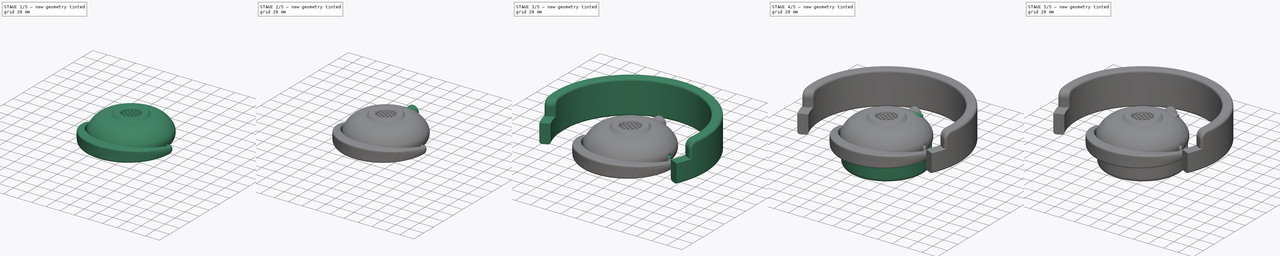
[diagram: build sequence overview — one tinted view per stage of 5, left to right]
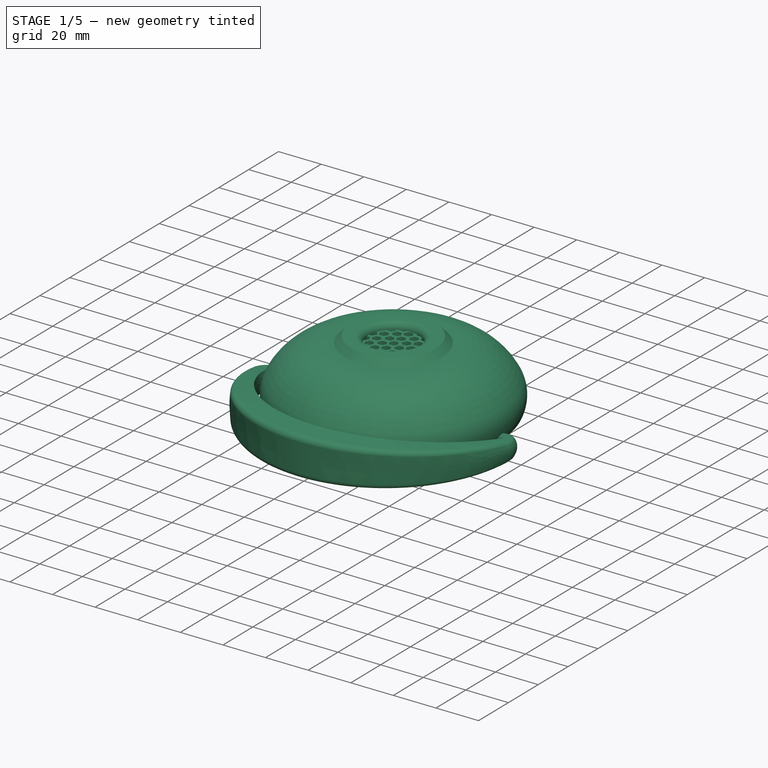
[diagram: stage 1 of 5 — iso view after this stage's code; geometry added in this stage tinted green]
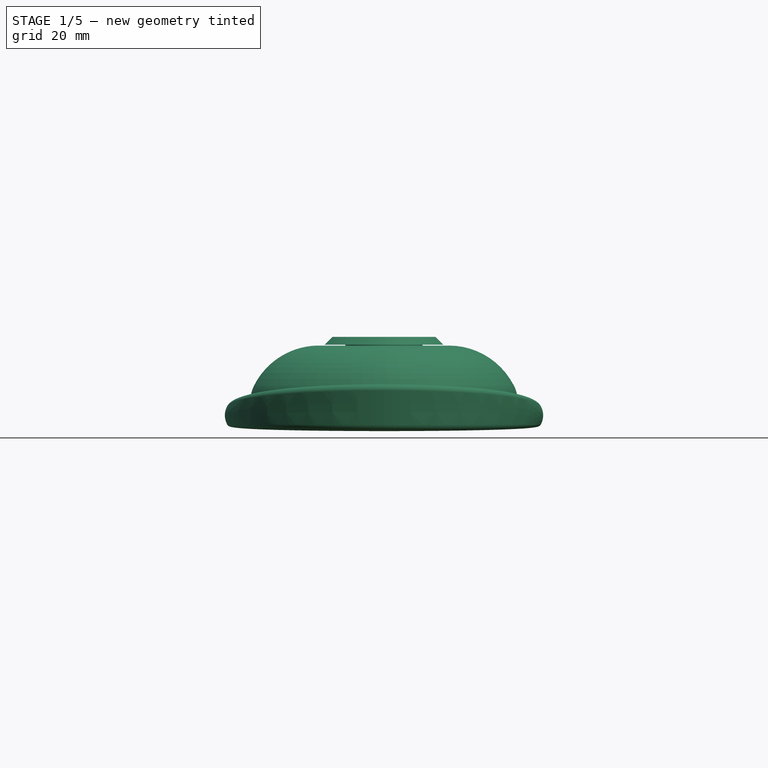
[diagram: stage 1 of 5 — front view after this stage's code; geometry added in this stage tinted green]
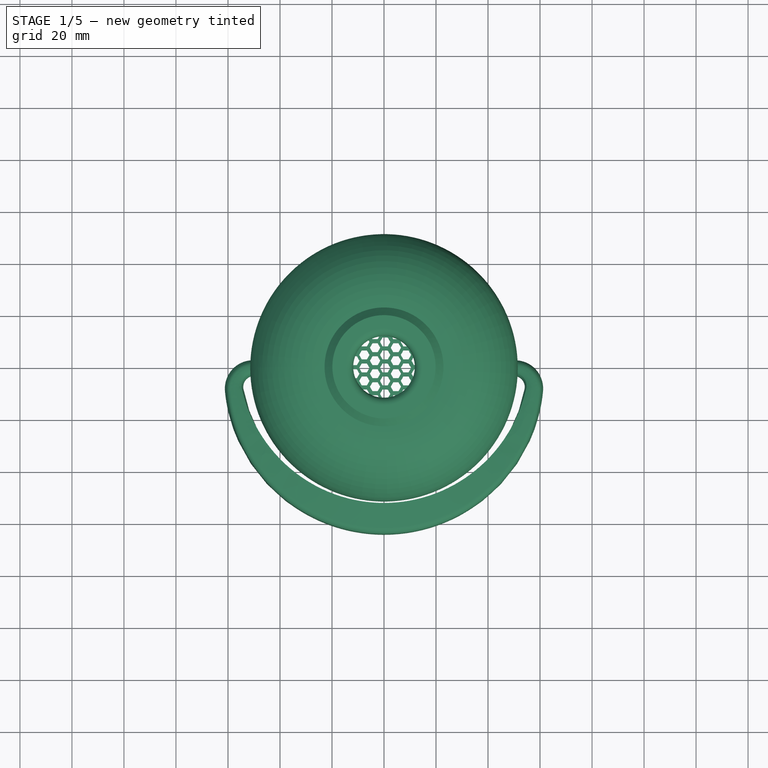
[diagram: stage 1 of 5 — top view after this stage's code; geometry added in this stage tinted green]
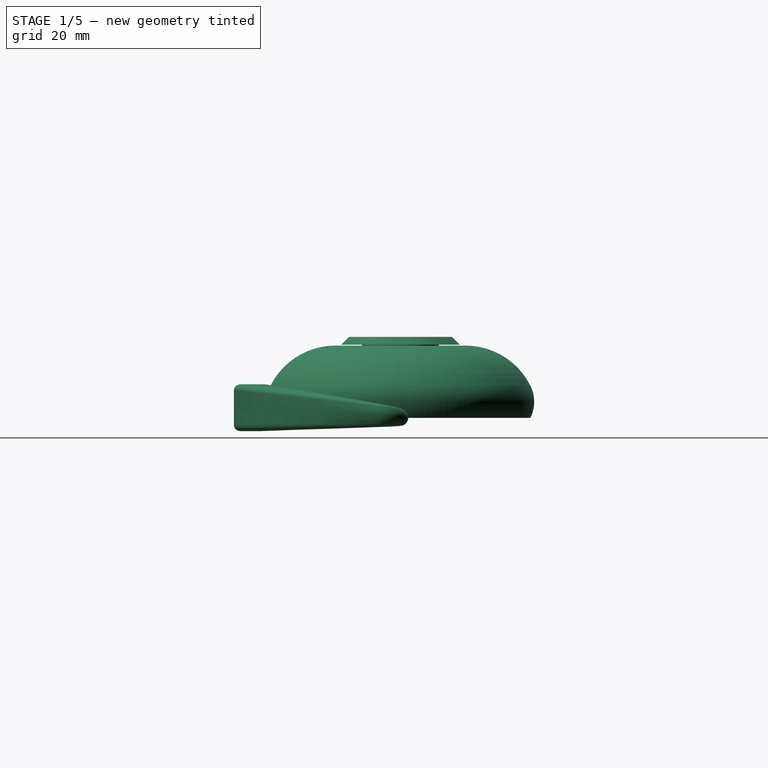
[diagram: stage 1 of 5 — right view after this stage's code; geometry added in this stage tinted green]
FCSTD DOCUMENT  (FreeCAD 1.1R39057 (Git))
Label: headset
License: All rights reserved
objects: Sketcher::SketchObject×38, PartDesign::Pocket×12, PartDesign::Body×9, PartDesign::Pad×7, PartDesign::Plane×6, PartDesign::Fillet×4, PartDesign::Revolution×3, PartDesign::LinearPattern×2, Part::Extrusion×2, Part::Feature×2, PartDesign::ShapeBinder×1, PartDesign::MultiTransform×1, PartDesign::Boolean×1, PartDesign::Hole×1, Part::FeaturePython×1, Part::Cut×1, Part::Fuse×1, PartDesign::AdditivePipe×1
note: 191 computed .brp shape members not serialized (recipe doc carries the construction recipe); baked Part::Feature solids carry a one-line shape summary decoded from their .brp

FEATURE [PartDesign::Body] Body003  label="driver grid"
  AllowCompound = false
  Group = -> [Sketch016,Revolution001,Sketch017,Pocket006,Sketch018,Pocket010]
  Origin = -> Origin003
  Tip = -> Pocket010
FEATURE [Sketcher::SketchObject] Sketch019
  ArcFitTolerance = 0
  FullyConstrained = false
  MakeInternals = false
  MapMode = 5
  Placement = pos=(52,0,0) rot=(0.57735,0.57735,0.57735;2.0944rad)
  sketch-geometry (3):
    g0: LineSegment [constr] StartX=0 StartY=10.5995 StartZ=0 EndX=0 EndY=3 EndZ=0
    g1: LineSegment [constr] StartX=0 StartY=6.79976 StartZ=0 EndX=6.82191 EndY=6.79976 EndZ=0
    g2: Circle CenterX=0 CenterY=6.79976 CenterZ=0 NormalX=0 NormalY=0 NormalZ=1 AngleXU=0 Radius=3.075
  constraints (7):
    c: PointOnObject(g0,g-4)
    c: PointOnObject(g0,g-3)
    c: Horizontal(g1)
    c: Symmetric(g0,g0,g1)
    c: PointOnObject(g1,g0)
    c: Diameter(g2) = 6.15
    c: Coincident(g2,g1)
FEATURE [Sketcher::SketchObject] Sketch020
  ArcFitTolerance = 0
  FullyConstrained = false
  MakeInternals = false
  MapMode = 5
  Placement = pos=(0,0,0) rot=(1,0,0;1.5708rad)
  sketch-geometry (9):
    g0: LineSegment StartX=-14.85 StartY=28.124 StartZ=0 EndX=-14.85 EndY=25.124 EndZ=0
    g1: LineSegment StartX=-19.85 StartY=31.124 StartZ=0 EndX=-14.85 EndY=31.124 EndZ=0
    g2: LineSegment StartX=-14.85 StartY=28.124 StartZ=0 EndX=-22.85 EndY=28.124 EndZ=0
    g3: LineSegment StartX=-19.85 StartY=31.124 StartZ=0 EndX=-22.85 EndY=28.124 EndZ=0
    g4: LineSegment [constr] StartX=-14.85 StartY=28.124 StartZ=0 EndX=-14.85 EndY=31.124 EndZ=0
    g5: ArcOfCircle CenterX=-14.85 CenterY=28.124 CenterZ=0 NormalX=0 NormalY=0 NormalZ=1 AngleXU=0 Radius=3 StartAngle=0 EndAngle=1.5708
    g6: LineSegment [constr] StartX=-14.85 StartY=28.124 StartZ=0 EndX=-11.85 EndY=28.124 EndZ=0
    g7: LineSegment StartX=-11.85 StartY=28.124 StartZ=0 EndX=-11.85 EndY=25.124 EndZ=0
    g8: LineSegment StartX=-14.85 StartY=25.124 StartZ=0 EndX=-11.85 EndY=25.124 EndZ=0
  constraints (23):
    c: Distance(g0) = 3
    c: Vertical(g0)
    c: Distance(g2) = 8
    c: Horizontal(g2)
    c: Coincident(g2,g0)
    c: Coincident(g3,g1)
    c: Coincident(g3,g2)
    c: Horizontal(g1)
    c: Distance(g2,g1) = 3
    c: Block(g0)
    c: Coincident(g4,g0)
    c: Vertical(g4)
    c: Coincident(g4,g1)
    c: Coincident(g5,g0)
    c: Coincident(g5,g1)
    c: Coincident(g6,g0)
    c: Coincident(g6,g5)
    c: Horizontal(g6)
    c: Coincident(g7,g5)
    c: Vertical(g7)
    c: Coincident(g8,g0)
    c: Horizontal(g8)
    c: Coincident(g8,g7)
FEATURE [PartDesign::Revolution] Revolution002
  Angle = 360
  Angle2 = 60
  Axis = (1e-16,1e-16,1)
  Base = (0,0,0)
  Placement = pos=(0,0,0) rot=(1,0,0;1.5708rad)
  Profile = -> Sketch020
  ReferenceAxis = -> Z_Axis004
  Refine = true
  Suppressed = false
  Type = 0
FEATURE [PartDesign::Body] Body009  label="headband"
  AllowCompound = false
  Group = -> [Sketch040,Pad007,Sketch041,Pocket013,Sketch042,Fillet002,Fillet003]
  Origin = -> Origin009
  Placement = pos=(-11.0558,-16.2605,-83.4809) rot=(0.630272,-0.440679,0.639186;3.96195rad)
  Tip = -> Fillet003
FEATURE [Sketcher::SketchObject] Sketch003
  ArcFitTolerance = 0
  FullyConstrained = false
  MakeInternals = false
  MapMode = 5
  Placement = pos=(0,7e-16,3) rot=(1,0,0;3.14159rad)
  sketch-geometry (4):
    g0: Circle CenterX=-0.037202 CenterY=-40.3385 CenterZ=0 NormalX=0 NormalY=0 NormalZ=1 AngleXU=0 Radius=1.53995
    g1: Circle CenterX=40.3385 CenterY=-0.037202 CenterZ=0 NormalX=0 NormalY=0 NormalZ=1 AngleXU=0 Radius=1.48786
    g2: Circle CenterX=0.037202 CenterY=40.3385 CenterZ=0 NormalX=0 NormalY=0 NormalZ=1 AngleXU=0 Radius=1.46013
    g3: Circle CenterX=-40.3385 CenterY=0.037202 CenterZ=0 NormalX=0 NormalY=0 NormalZ=1 AngleXU=0 Radius=1.54339
FEATURE [PartDesign::Revolution] Revolution
  Angle = 360
  Angle2 = 60
  Axis = (0,0,1)
  Base = (0,0,0)
  Placement = pos=(0,0,0) rot=(1,0,0;1.5708rad)
  Profile = -> Sketch
  ReferenceAxis = -> Sketch [V_Axis]
  Refine = true
  Suppressed = false
  Type = 0
FEATURE [PartDesign::Body] Body  label="cup"
  AllowCompound = false
  Group = -> [Sketch,Sketch003,Sketch004,Sketch005,Sketch007,Sketch008,Sketch009,Sketch014,Sketch015,Sketch019,Sketch037,Revolution,Pad,Pocket,Pocket014,Pad008,Pocket015,Pocket016,Pocket017,Pocket018,Pocket019]
  Origin = -> Origin
  Tip = -> Pocket019
FEATURE [Sketcher::SketchObject] Sketch043
  ArcFitTolerance = 1e-06
  AttachmentSupport = -> [Revolution002]
  FullyConstrained = false
  MakeInternals = false
  MapMode = 5
  Placement = pos=(2.8e-15,0,25.124) rot=(1,0,0;3.14159rad)
  sketch-geometry (18):
    g0: LineSegment StartX=-10.4282 StartY=10.8777 StartZ=0 EndX=-9.42825 EndY=12.6097 EndZ=0
    g1: LineSegment StartX=-9.42825 StartY=12.6097 StartZ=0 EndX=-10.4282 EndY=14.3418 EndZ=0
    g2: LineSegment StartX=-10.4282 StartY=14.3418 StartZ=0 EndX=-12.4282 EndY=14.3418 EndZ=0
    g3: LineSegment StartX=-12.4282 StartY=14.3418 StartZ=0 EndX=-13.4282 EndY=12.6097 EndZ=0
    g4: LineSegment StartX=-13.4282 StartY=12.6097 StartZ=0 EndX=-12.4282 EndY=10.8777 EndZ=0
    g5: LineSegment StartX=-12.4282 StartY=10.8777 StartZ=0 EndX=-10.4282 EndY=10.8777 EndZ=0
    g6: Circle [constr] CenterX=-11.4282 CenterY=12.6097 CenterZ=0 NormalX=0 NormalY=0 NormalZ=1 AngleXU=0 Radius=2
    g7: LineSegment StartX=-6.56222 StartY=8.64565 StartZ=0 EndX=-5.56222 EndY=10.3777 EndZ=0
    g8: LineSegment StartX=-5.56222 StartY=10.3777 StartZ=0 EndX=-6.56222 EndY=12.1097 EndZ=0
    g9: LineSegment StartX=-6.56222 StartY=12.1097 StartZ=0 EndX=-8.56222 EndY=12.1097 EndZ=0
    g10: LineSegment StartX=-8.56222 StartY=12.1097 StartZ=0 EndX=-9.56222 EndY=10.3777 EndZ=0
    g11: LineSegment StartX=-9.56222 StartY=10.3777 StartZ=0 EndX=-8.56222 EndY=8.64565 EndZ=0
    g12: LineSegment StartX=-8.56222 StartY=8.64565 StartZ=0 EndX=-6.56222 EndY=8.64565 EndZ=0
    g13: Circle [constr] CenterX=-7.56222 CenterY=10.3777 CenterZ=0 NormalX=0 NormalY=0 NormalZ=1 AngleXU=0 Radius=2
    g14: LineSegment [constr] StartX=-9.42825 StartY=12.6097 StartZ=0 EndX=-8.56222 EndY=13.1097 EndZ=0
    g15: LineSegment [constr] StartX=-8.56222 StartY=13.1097 StartZ=0 EndX=-8.56222 EndY=12.1097 EndZ=0
    g16: LineSegment [constr] StartX=-8.56222 StartY=12.1097 StartZ=0 EndX=-9.42825 EndY=12.6097 EndZ=0
    g17: LineSegment [constr] StartX=-12.4282 StartY=14.3418 StartZ=0 EndX=-9.42825 EndY=12.6097 EndZ=0
  constraints (41):
    c: Coincident(g0,g1)
    c: Coincident(g1,g2)
    c: Coincident(g2,g3)
    c: Coincident(g3,g4)
    c: Coincident(g4,g5)
    c: Coincident(g5,g0)
    c: Equal(g0, g1-g5) x5
    c: PointOnObject(g0,g6)
    c: PointOnObject(g1,g6)
    c: PointOnObject(g2,g6)
    c: PointOnObject(g3,g6)
    c: PointOnObject(g4,g6)
    c: PointOnObject(g5,g6)
    c: Distance(g0,g0) = 2
    c: Horizontal(g5)
    c: Coincident(g7,g8)
    c: Coincident(g8,g9)
    c: Coincident(g9,g10)
    c: Coincident(g10,g11)
    c: Coincident(g11,g12)
    c: Coincident(g12,g7)
    c: Equal(g7, g8-g12) x5
    c: PointOnObject(g7,g13)
    c: PointOnObject(g8,g13)
    c: PointOnObject(g9,g13)
    c: PointOnObject(g10,g13)
    c: PointOnObject(g11,g13)
    c: PointOnObject(g12,g13)
    c: Radius(g13) = 2
    c: Horizontal(g9)
    c: Coincident(g14,g0)
    c: Coincident(g15,g14)
    c: Coincident(g15,g9)
    c: Coincident(g16,g9)
    c: Coincident(g16,g0)
    c: Equal(g14,g15)
    c: Equal(g15,g16)
    c: Distance(g15,g15) = 1
    c: Coincident(g17,g2)
    c: Coincident(g17,g0)
    c: Parallel(g17,g16)
FEATURE [Sketcher::SketchObject] Sketch044
  ArcFitTolerance = 1e-06
  AttachmentSupport = -> [Revolution002]
  ExternalGeometry = -> [Revolution002]
  FullyConstrained = true
  MakeInternals = false
  MapMode = 5
  Placement = pos=(2.8e-15,0,25.124) rot=(1,0,0;3.14159rad)
  sketch-geometry (1):
    g0: Circle CenterX=0 CenterY=0 CenterZ=0 NormalX=0 NormalY=0 NormalZ=1 AngleXU=0 Radius=11.85
  constraints (2):
    c: Coincident(g0,g-1)
    c: Tangent(g0,g-3)
FEATURE [PartDesign::Body] Body004  label="backgrid"
  AllowCompound = false
  Group = -> [Sketch020,Revolution002,Sketch043,Sketch044]
  Origin = -> Origin004
  Tip = -> Revolution002
FEATURE [Part::FeaturePython] Array  # Draft array (typed FeaturePython)
  Angle = 360
  ArrayType = 0
  Axis = (0,0,1)
  Base = -> Sketch043
  Center = (0,0,0)
  Count = 24
  Fuse = false
  IntervalAxis = (0,0,0)
  IntervalX = (8,0,0)
  IntervalY = (0,5,0)
  IntervalZ = (0,0,100)
  NumberCircles = 3
  NumberPolar = 5
  NumberX = 4
  NumberY = 6
  NumberZ = 1
  RadialDistance = 50
  Symmetry = 1
  TangentialDistance = 25
FEATURE [Part::Extrusion] Extrude
  Base = -> Sketch044
  Dir = (0,0,-1)
  DirMode = 2
  FaceMakerClass = Part::FaceMakerBullseye
  FaceMakerMode = 3
  LengthFwd = -3
  LengthRev = 0
  Solid = true
  Symmetric = false
FEATURE [Part::Extrusion] Extrude003
  Base = -> Array
  Dir = (0,0,1)
  DirMode = 2
  FaceMakerClass = Part::FaceMakerBullseye
  FaceMakerMode = 3
  LengthFwd = 5
  LengthRev = 0
  Solid = true
  Symmetric = false
FEATURE [Part::Cut] Cut
  Base = -> Extrude
  Tool = -> Extrude003
FEATURE [Part::Feature] Cut_solid  label="Cut (Solid)"
  shape: bbox 23.7 x 23.68 x 3 mm, 165 faces (baked)
FEATURE [Part::Fuse] Fusion
  Base = -> Body004
  Tool = -> Cut_solid
FEATURE [Part::Feature] Fusion_solid  label="backgrid "
  shape: bbox 45.7 x 45.7 x 6 mm, 170 faces (baked)
FEATURE [PartDesign::AdditivePipe] AdditivePipe
  AuxilleryCurvelinear = true
  AuxillerySpineTangent = false
  Binormal = (0,0,0)
  Mode = 0
  Placement = pos=(50,0,0) rot=(0,1,0;1.5708rad)
  Profile = -> Sketch027
  Refine = true
  Sections = -> [Sketch031,Sketch026]
  Spine = -> Sketch024 [Edge4,Edge3,Edge2,Edge1]
  SpineTangent = false
  Suppressed = false
  Transformation = 1
  Transition = 0
FEATURE [PartDesign::Body] Body007  label="rod bracket"
  AllowCompound = false
  Group = -> [Sketch024,DatumPlane,Sketch025,DatumPlane001,Sketch026,DatumPlane002,Sketch027,DatumPlane003,Sketch028,DatumPlane005,Sketch030,DatumPlane006,Sketch031,Sketch032,Sketch033,Sketch034,Sketch036,AdditivePipe]
  Origin = -> Origin007
  Placement = pos=(0,0,7) rot=(0,0,1;0rad)
  Tip = -> AdditivePipe
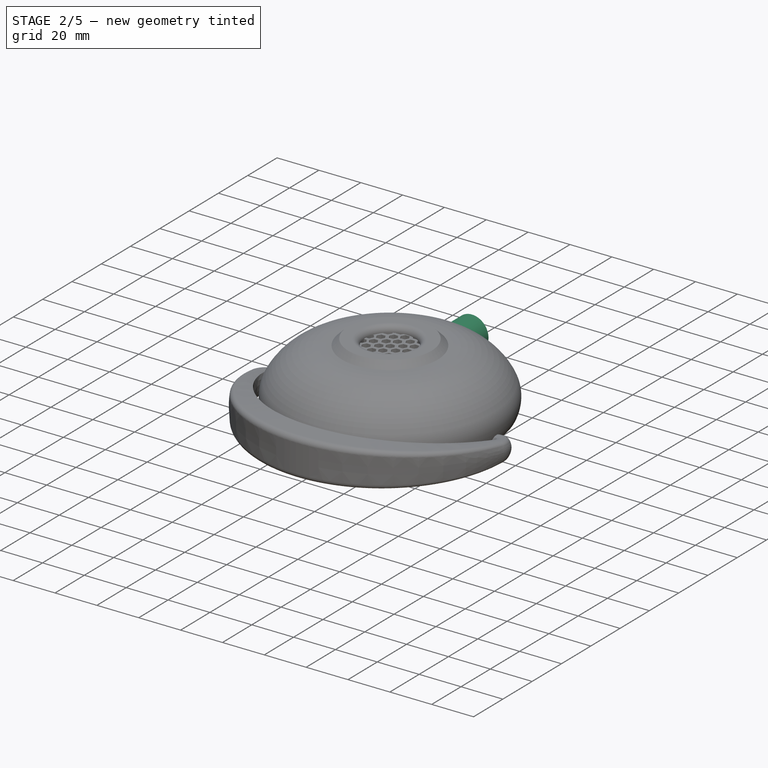
[diagram: stage 2 of 5 — iso view after this stage's code; geometry added in this stage tinted green]
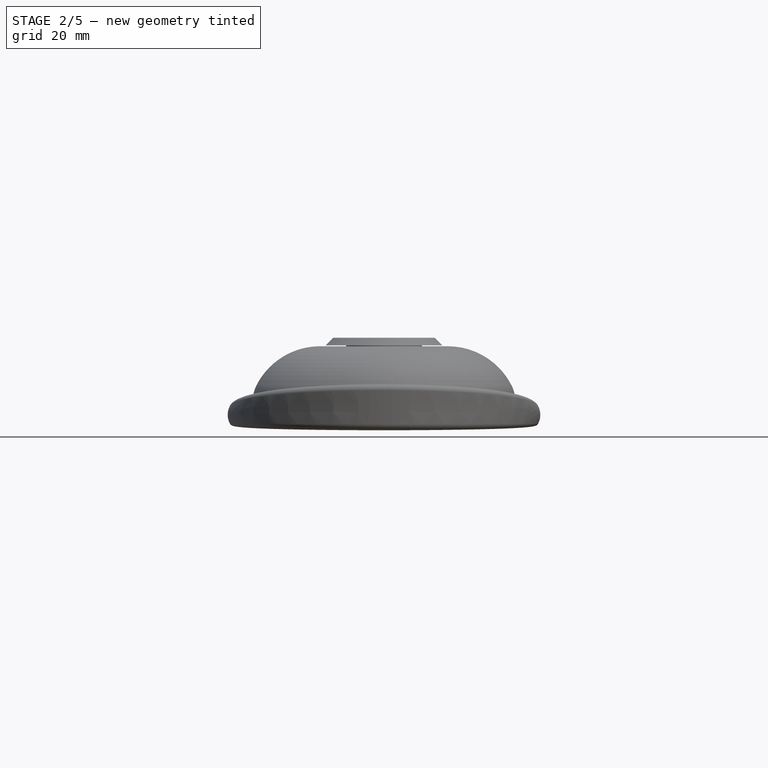
[diagram: stage 2 of 5 — front view after this stage's code; geometry added in this stage tinted green]
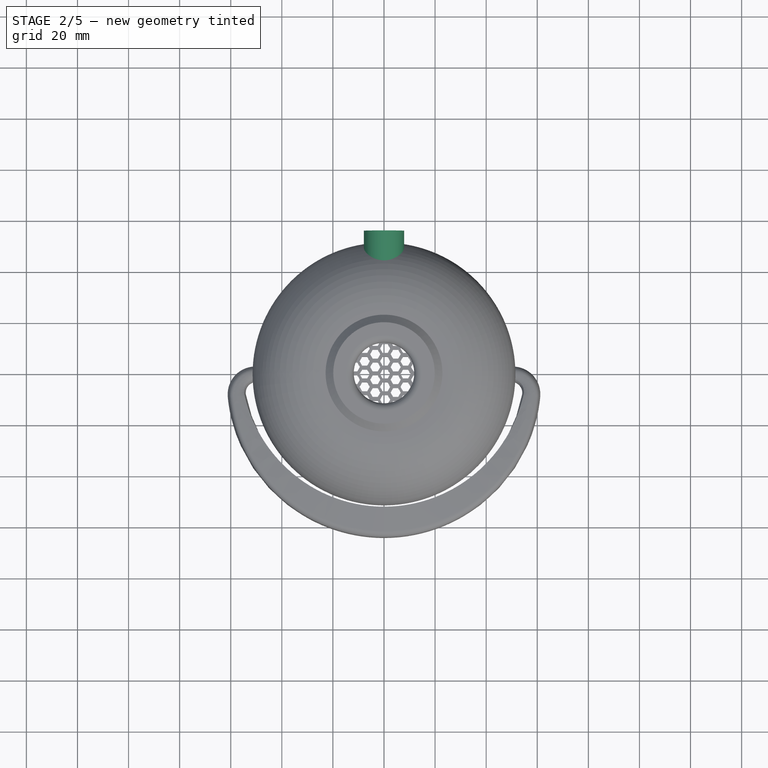
[diagram: stage 2 of 5 — top view after this stage's code; geometry added in this stage tinted green]
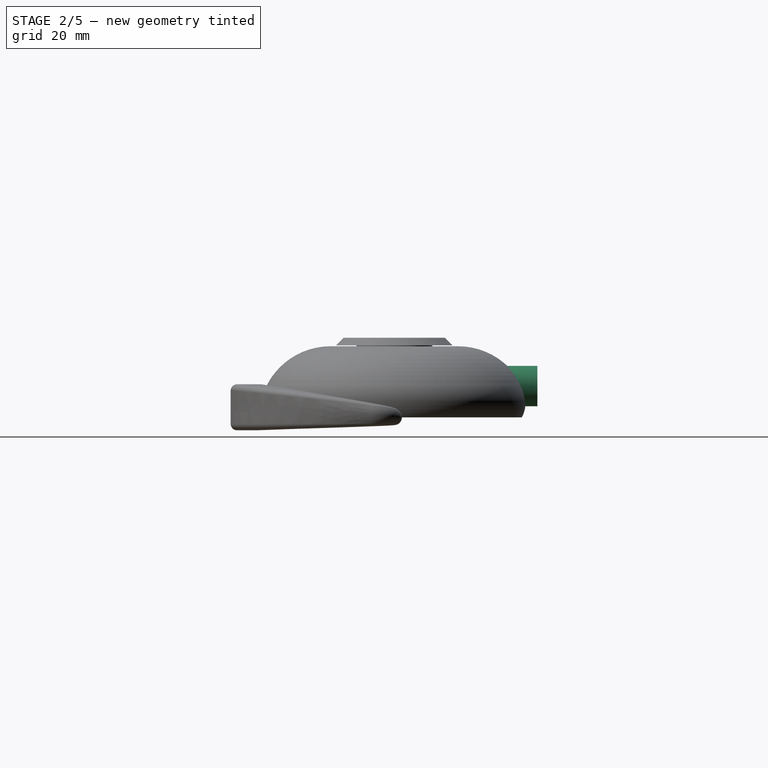
[diagram: stage 2 of 5 — right view after this stage's code; geometry added in this stage tinted green]
FEATURE [PartDesign::Pad] Pad
  BaseFeature = -> Revolution
  Direction = (0,0,-1)
  Length = 10
  Length2 = 10
  Placement = pos=(0,0,0) rot=(1,0,0;1.5708rad)
  Profile = -> Sketch004
  ReferenceAxis = -> Sketch004 [N_Axis]
  Refine = true
  Reversed = true
  Suppressed = false
  Type = 5
  UpToShape = -> [Revolution]
FEATURE [PartDesign::Pocket] Pocket
  BaseFeature = -> Pad
  Direction = (0,0,1)
  Length = 5
  Length2 = 5
  Placement = pos=(0,0,0) rot=(1,0,0;1.5708rad)
  Profile = -> Sketch005
  ReferenceAxis = -> Sketch005 [N_Axis]
  Refine = true
  Suppressed = false
  Type = 0
FEATURE [Sketcher::SketchObject] Sketch007
  ArcFitTolerance = 0
  AttachmentSupport = -> [Pocket]
  FullyConstrained = false
  MakeInternals = false
  MapMode = 5
  Placement = pos=(0,-1.2e-15,10.5995) rot=(1,0,0;3.14159rad)
  sketch-geometry (9):
    g0: LineSegment [constr] StartX=-7.92396 StartY=-25.2092 StartZ=0 EndX=7.02985 EndY=-25.2092 EndZ=0
    g1: LineSegment [constr] StartX=-7.20371 StartY=-30.1908 StartZ=0 EndX=7.21561 EndY=-30.1908 EndZ=0
    g2: LineSegment [constr] StartX=0 StartY=-25.2092 StartZ=0 EndX=0 EndY=-30.1908 EndZ=0
    g3: LineSegment [constr] StartX=-3.01823 StartY=-27.7 StartZ=0 EndX=0 EndY=-27.7 EndZ=0
    g4: Circle CenterX=0 CenterY=-27.7 CenterZ=0 NormalX=0 NormalY=0 NormalZ=1 AngleXU=0 Radius=1.85
    g5: Circle CenterX=0 CenterY=27.7 CenterZ=0 NormalX=0 NormalY=0 NormalZ=1 AngleXU=0 Radius=1.85
    g6: Circle [constr] CenterX=0 CenterY=0 CenterZ=0 NormalX=0 NormalY=0 NormalZ=1 AngleXU=0 Radius=27.7
    g7: Circle CenterX=-27.7 CenterY=0 CenterZ=0 NormalX=0 NormalY=0 NormalZ=1 AngleXU=0 Radius=1.85
    g8: Circle CenterX=27.7 CenterY=0 CenterZ=0 NormalX=0 NormalY=0 NormalZ=1 AngleXU=0 Radius=1.85
  constraints (22):
    c: Horizontal(g0)
    c: Horizontal(g1)
    c: PointOnObject(g2,g0)
    c: PointOnObject(g2,g1)
    c: Horizontal(g3)
    c: Symmetric(g2,g2,g3)
    c: PointOnObject(g3,g2)
    c: Diameter(g4) = 3.7
    c: Coincident(g4,g3)
    c: Coincident(g6,g-1)
    c: PointOnObject(g3,g6)
    c: PointOnObject(g7,g6)
    c: Block(g6)
    c: PointOnObject(g7,g-1)
    c: PointOnObject(g8,g-1)
    c: PointOnObject(g8,g6)
    c: Equal(g8,g4)
    c: Equal(g4,g7)
    c: Equal(g7,g5)
    c: PointOnObject(g3,g-2)
    c: PointOnObject(g5,g6)
    c: PointOnObject(g5,g-2)
FEATURE [PartDesign::Pocket] Pocket014
  BaseFeature = -> Pocket
  Direction = (0,1,0)
  Length = 5
  Length2 = 5
  Placement = pos=(0,0,0) rot=(1,0,0;1.5708rad)
  Profile = -> Sketch007
  ReferenceAxis = -> Sketch007 [N_Axis]
  Refine = true
  Suppressed = false
  Type = 0
FEATURE [PartDesign::Pad] Pad008
  BaseFeature = -> Pocket014
  Direction = (0,-1,0)
  Length = 20
  Length2 = 10
  Placement = pos=(0,0,0) rot=(1,0,0;1.5708rad)
  Profile = -> Sketch009 [Edge1]
  ReferenceAxis = -> Sketch009 [N_Axis]
  Refine = true
  Reversed = true
  Suppressed = false
  Type = 0
FEATURE [PartDesign::Pocket] Pocket015
  BaseFeature = -> Pad008
  Direction = (0,1,0)
  Length = 0
  Length2 = 5
  Placement = pos=(0,0,0) rot=(1,0,0;1.5708rad)
  Profile = -> Sketch008 [Edge1]
  ReferenceAxis = -> Sketch008 [N_Axis]
  Refine = true
  Suppressed = false
  Type = 3
  UpToFace = -> Pad008 [Face42]
FEATURE [PartDesign::Pocket] Pocket016
  BaseFeature = -> Pocket015
  Direction = (0,0.939693,-0.34202)
  Length = 14
  Length2 = 5
  Placement = pos=(0,0,0) rot=(1,0,0;1.5708rad)
  Profile = -> Sketch015 [Edge1]
  ReferenceAxis = -> Sketch015 [N_Axis]
  Refine = true
  Suppressed = false
  Type = 0
FEATURE [PartDesign::Pocket] Pocket017
  BaseFeature = -> Pocket016
  Direction = (0,-2.5e-15,1)
  Length = 5
  Length2 = 5
  Placement = pos=(0,0,0) rot=(1,0,0;1.5708rad)
  Profile = -> Sketch014
  ReferenceAxis = -> Sketch014 [N_Axis]
  Refine = true
  Suppressed = false
  Type = 0
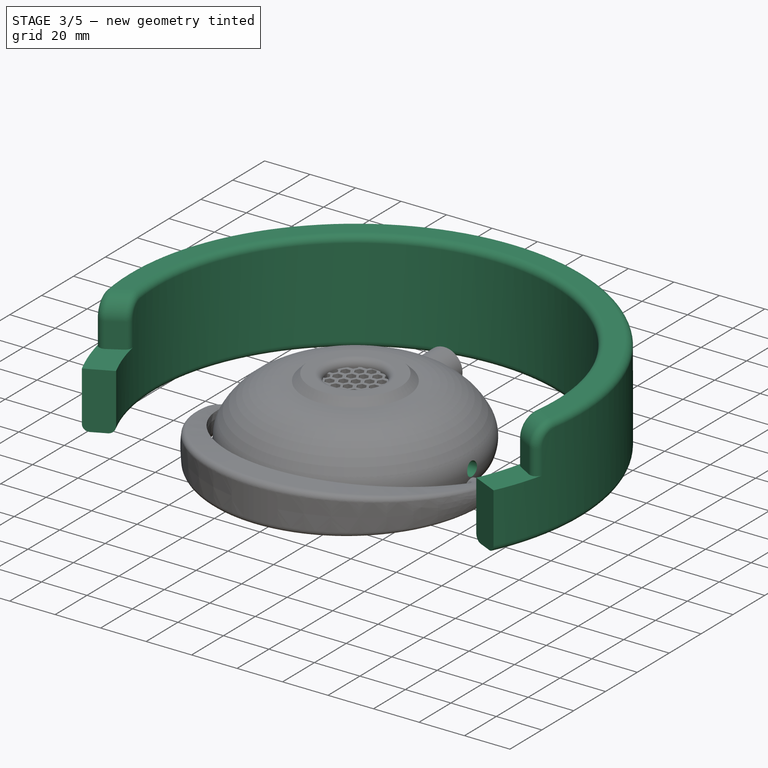
[diagram: stage 3 of 5 — iso view after this stage's code; geometry added in this stage tinted green]
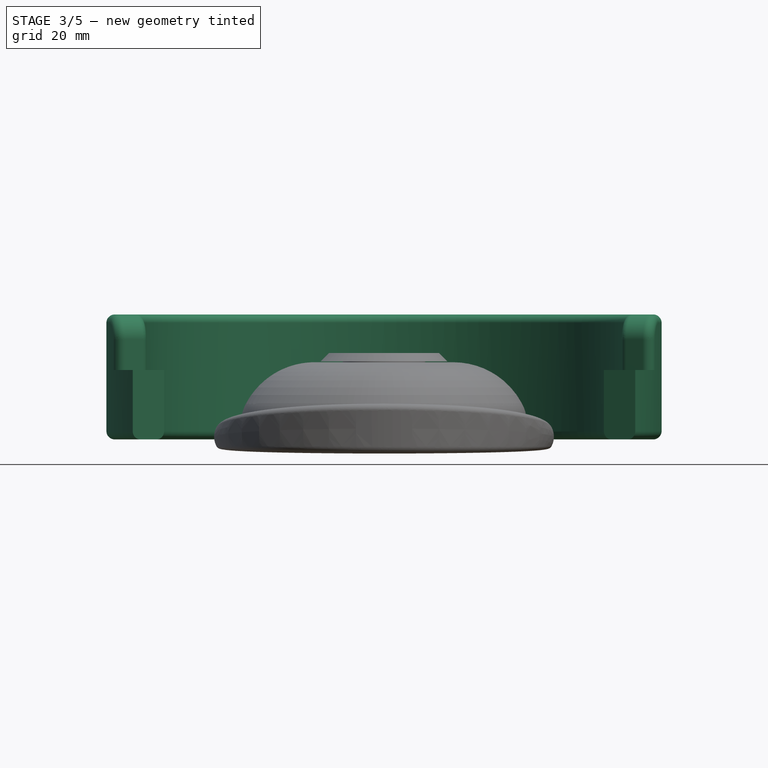
[diagram: stage 3 of 5 — front view after this stage's code; geometry added in this stage tinted green]
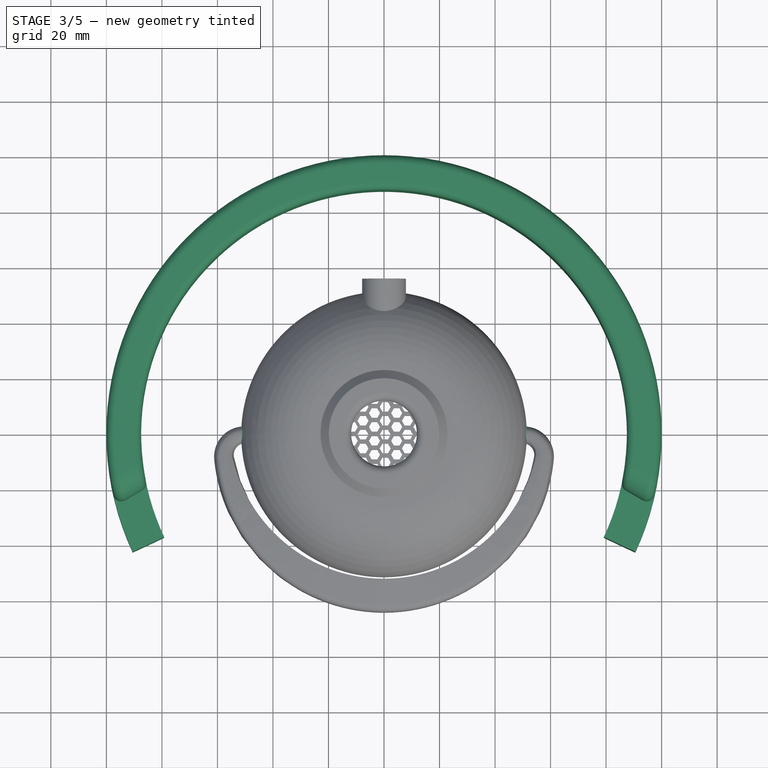
[diagram: stage 3 of 5 — top view after this stage's code; geometry added in this stage tinted green]
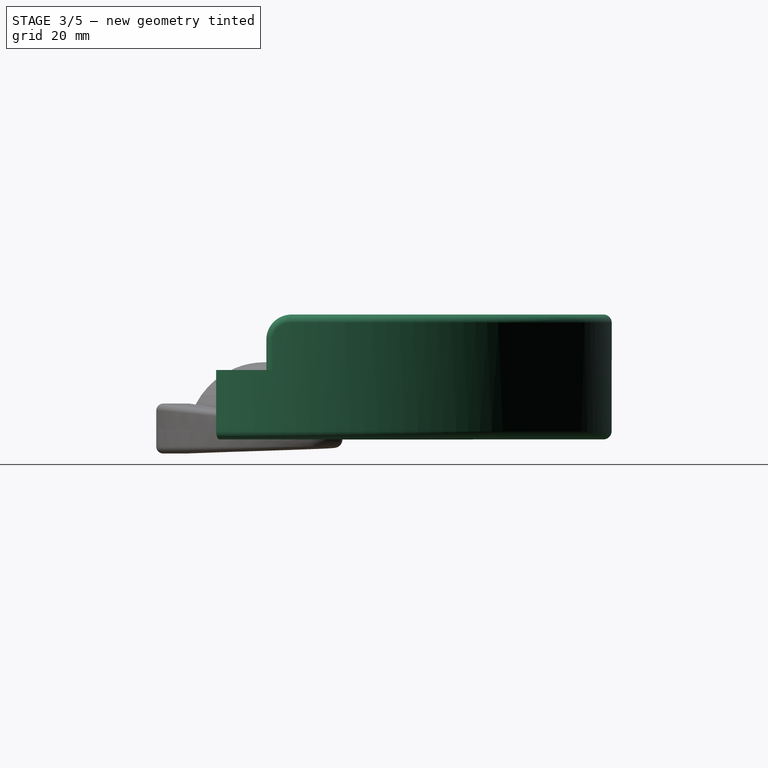
[diagram: stage 3 of 5 — right view after this stage's code; geometry added in this stage tinted green]
FEATURE [PartDesign::Body] Body008  label="bracket for headband"
  AllowCompound = false
  Group = -> [Sketch038,Pad006,Fillet001,Sketch039,Hole003]
  Origin = -> Origin008
  Placement = pos=(-13.4361,-70.2791,-17.6475) rot=(0.315092,0.324412,-0.891893;1.67756rad)
  Tip = -> Hole003
FEATURE [Sketcher::SketchObject] Sketch040
  ArcFitTolerance = 0
  AttachmentSupport = -> [XY_Plane009]
  FullyConstrained = false
  MakeInternals = false
  MapMode = 5
  sketch-geometry (8):
    g0: ArcOfCircle CenterX=0 CenterY=0 CenterZ=0 NormalX=0 NormalY=0 NormalZ=1 AngleXU=0 Radius=87.5 StartAngle=5.84422 EndAngle=9.86374
    g1: LineSegment [constr] StartX=0 StartY=87.5 StartZ=0 EndX=0 EndY=-42.5 EndZ=0
    g2: LineSegment [constr] StartX=-76.4853 StartY=-42.5 StartZ=0 EndX=76.4853 EndY=-42.5 EndZ=0
    g3: ArcOfCircle CenterX=0 CenterY=0 CenterZ=0 NormalX=0 NormalY=0 NormalZ=1 AngleXU=0 Radius=100 StartAngle=5.84422 EndAngle=9.86374
    g4: LineSegment [constr] StartX=-76.4853 StartY=-42.5 StartZ=0 EndX=-90.5193 EndY=-42.5 EndZ=0
    g5: LineSegment [constr] StartX=76.4853 StartY=-42.5 StartZ=0 EndX=90.5193 EndY=-42.5 EndZ=0
    g6: LineSegment StartX=79.2044 StartY=-37.1875 StartZ=0 EndX=90.5193 EndY=-42.5 EndZ=0
    g7: LineSegment StartX=-79.2044 StartY=-37.1875 StartZ=0 EndX=-90.5193 EndY=-42.5 EndZ=0
  constraints (19):
    c: Diameter(g0) = 175
    c: Coincident(g0,g-1)
    c: PointOnObject(g1,g-2)
    c: Vertical(g1)
    c: PointOnObject(g1,g0)
    c: DistanceY(g1,g1) = 130
    c: Horizontal(g2)
    c: PointOnObject(g1,g2)
    c: Coincident(g3,g0)
    c: Coincident(g4,g2)
    c: Horizontal(g4)
    c: Coincident(g5,g2)
    c: Horizontal(g5)
    c: Coincident(g3,g4)
    c: Coincident(g3,g5)
    c: Coincident(g6,g3)
    c: Coincident(g7,g3)
    c: Coincident(g6,g0)
    c: Coincident(g7,g0)
FEATURE [PartDesign::Pad] Pad007
  Direction = (0,0,1)
  Length = 45
  Length2 = 10
  Profile = -> Sketch040
  ReferenceAxis = -> Sketch040 [N_Axis]
  Refine = true
  Suppressed = false
  Type = 0
FEATURE [Sketcher::SketchObject] Sketch041
  ArcFitTolerance = 0
  AttachmentSupport = -> [Pad007]
  ExternalGeometry = -> [Pad007]
  FullyConstrained = false
  MakeInternals = false
  MapMode = 5
  Placement = pos=(0,0,45) rot=(0,0,1;0rad)
  sketch-geometry (8):
    g0: LineSegment StartX=85.304 StartY=-19.48 StartZ=0 EndX=96.5627 EndY=-25.9931 EndZ=0
    g1: LineSegment StartX=79.2044 StartY=-37.1875 StartZ=0 EndX=90.5193 EndY=-42.5 EndZ=0
    g2: ArcOfCircle CenterX=0 CenterY=0 CenterZ=0 NormalX=0 NormalY=0 NormalZ=1 AngleXU=0 Radius=87.5 StartAngle=5.84422 EndAngle=6.05868
    g3: ArcOfCircle CenterX=0 CenterY=0 CenterZ=0 NormalX=0 NormalY=0 NormalZ=1 AngleXU=0 Radius=100 StartAngle=5.84422 EndAngle=6.02023
    g4: LineSegment StartX=-85.304 StartY=-19.48 StartZ=0 EndX=-96.5627 EndY=-25.9931 EndZ=0
    g5: LineSegment StartX=-79.2044 StartY=-37.1875 StartZ=0 EndX=-90.5193 EndY=-42.5 EndZ=0
    g6: ArcOfCircle CenterX=0 CenterY=0 CenterZ=0 NormalX=0 NormalY=0 NormalZ=1 AngleXU=0 Radius=87.5 StartAngle=3.3661 EndAngle=3.58055
    g7: ArcOfCircle CenterX=0 CenterY=0 CenterZ=0 NormalX=0 NormalY=0 NormalZ=1 AngleXU=0 Radius=100 StartAngle=3.40454 EndAngle=3.58055
  constraints (10):
    c: Coincident(g1,g-3)
    c: Coincident(g3,g0)
    c: Coincident(g0,g2)
    c: PointOnObject(g2,g-3)
    c: PointOnObject(g3,g1)
    c: Coincident(g1,g2)
    c: Coincident(g7,g4)
    c: Coincident(g4,g6)
    c: PointOnObject(g7,g5)
    c: Coincident(g5,g6)
FEATURE [PartDesign::Pocket] Pocket013
  BaseFeature = -> Pad007
  Direction = (0,0,-1)
  Length = 20
  Length2 = 5
  Profile = -> Sketch041
  ReferenceAxis = -> Sketch041 [N_Axis]
  Refine = true
  Suppressed = false
  Type = 0
FEATURE [Sketcher::SketchObject] Sketch042
  ArcFitTolerance = 0
  AttachmentSupport = -> [Pocket013]
  ExternalGeometry = -> [Pocket013]
  FullyConstrained = true
  MakeInternals = false
  MapMode = 5
  Placement = pos=(0,0,0) rot=(1,0,0;3.14159rad)
FEATURE [PartDesign::Fillet] Fillet002
  Base = -> Pocket013 [Edge23,Edge24]
  BaseFeature = -> Pocket013
  Radius = 9
  Refine = true
  SupportTransform = false
  Suppressed = false
  UseAllEdges = false
FEATURE [PartDesign::Fillet] Fillet003
  Base = -> Fillet002 [Edge4,Edge18,Edge25,Edge7]
  BaseFeature = -> Fillet002
  Radius = 3
  Refine = true
  SupportTransform = false
  Suppressed = false
  UseAllEdges = false
FEATURE [PartDesign::Pocket] Pocket018
  BaseFeature = -> Pocket017
  Direction = (-1,1e-16,-2e-16)
  Length = 5
  Length2 = 5
  Placement = pos=(0,0,0) rot=(1,0,0;1.5708rad)
  Profile = -> Sketch019
  ReferenceAxis = -> Sketch019 [N_Axis]
  Refine = true
  Suppressed = false
  Type = 0
FEATURE [PartDesign::Pocket] Pocket019
  BaseFeature = -> Pocket018
  Direction = (-1,1e-16,-2e-16)
  Length = 5
  Length2 = 5
  Placement = pos=(0,0,0) rot=(1,0,0;1.5708rad)
  Profile = -> Sketch037 [Edge1]
  ReferenceAxis = -> Sketch037 [N_Axis]
  Refine = true
  Reversed = true
  Suppressed = false
  Type = 0
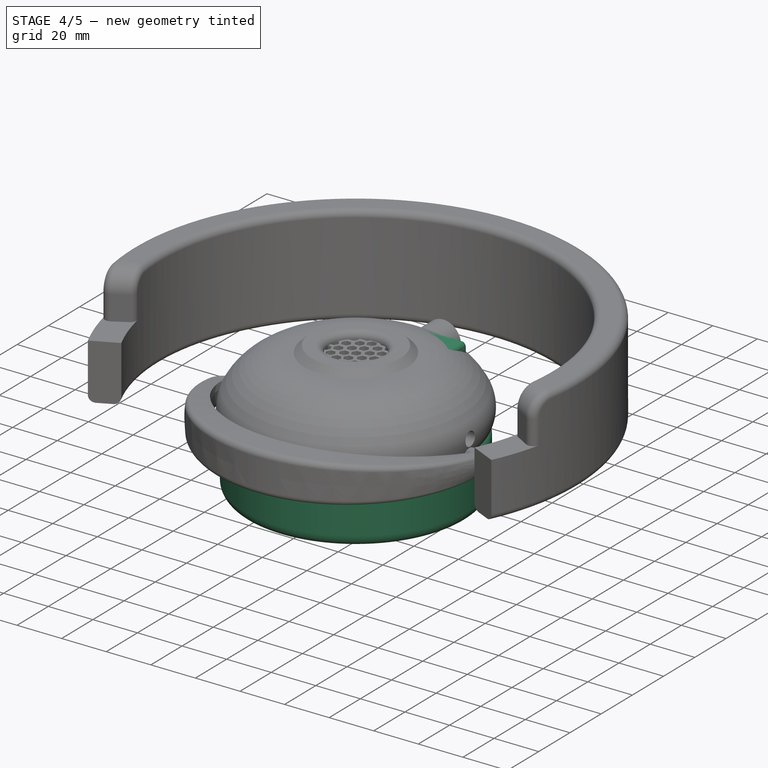
[diagram: stage 4 of 5 — iso view after this stage's code; geometry added in this stage tinted green]
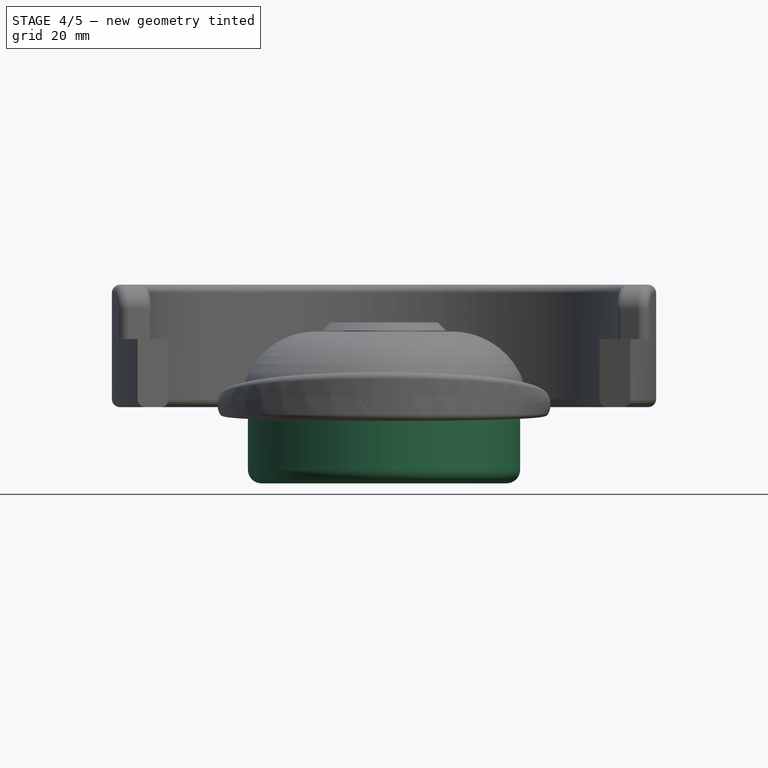
[diagram: stage 4 of 5 — front view after this stage's code; geometry added in this stage tinted green]
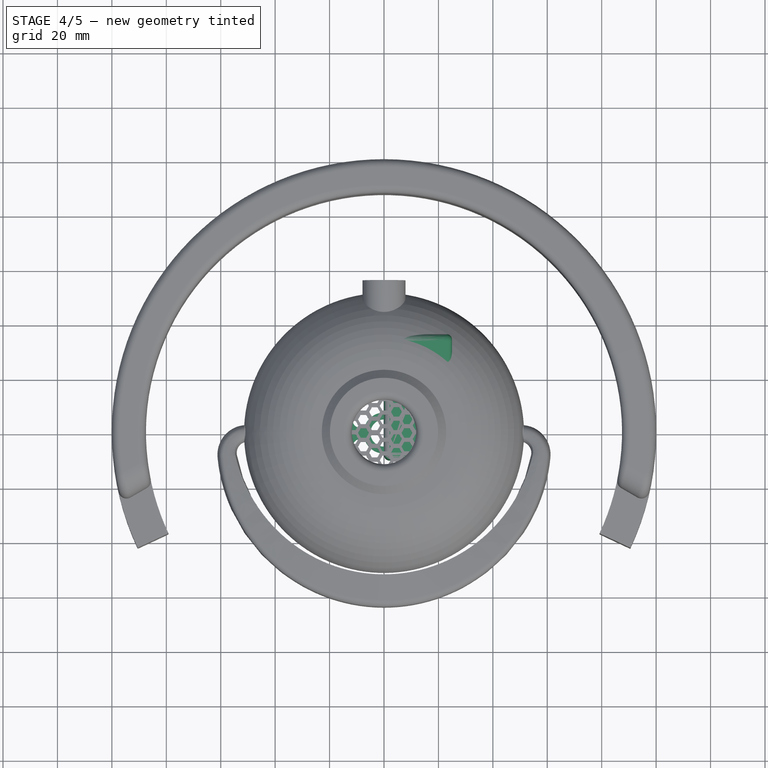
[diagram: stage 4 of 5 — top view after this stage's code; geometry added in this stage tinted green]
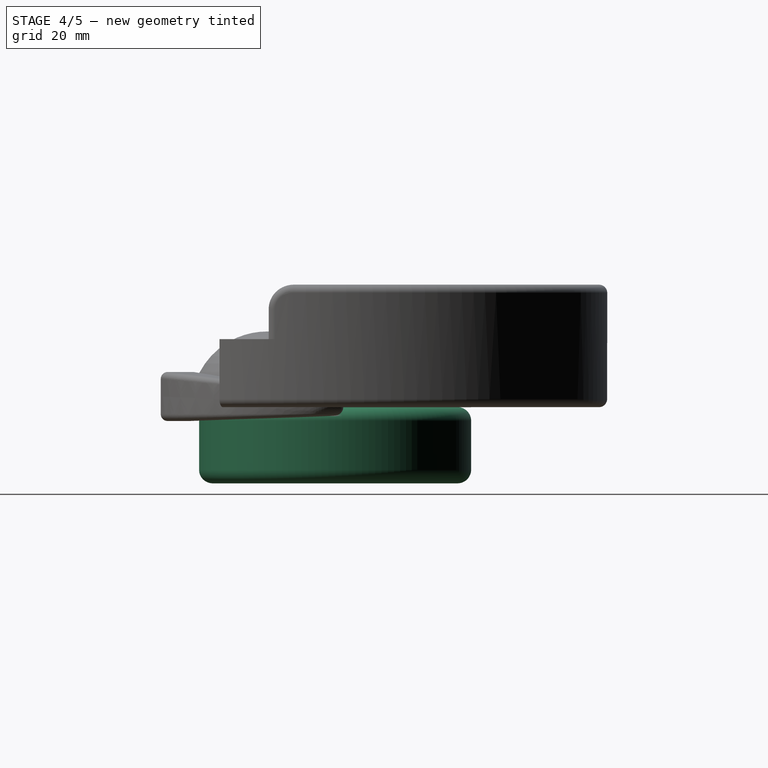
[diagram: stage 4 of 5 — right view after this stage's code; geometry added in this stage tinted green]
FEATURE [PartDesign::Body] Body001  label="grid"
  AllowCompound = false
  Group = -> [CopyFillet,Sketch010,Pad002,Sketch011,Pocket002,MultiTransform,LinearPattern,LinearPattern001,Boolean,Sketch013,Pocket003]
  Origin = -> Origin001
  Tip = -> Pocket003
FEATURE [Sketcher::SketchObject] Sketch014
  ArcFitTolerance = 0
  FullyConstrained = true
  MakeInternals = false
  MapMode = 5
  Placement = pos=(0,-5.54e-14,20.7995) rot=(1,0,0;3.14159rad)
  sketch-geometry (4):
    g0: ArcOfCircle CenterX=0 CenterY=0 CenterZ=0 NormalX=0 NormalY=0 NormalZ=1 AngleXU=0 Radius=25.2 StartAngle=4.17036 EndAngle=5.25441
    g1: ArcOfCircle CenterX=0 CenterY=0 CenterZ=0 NormalX=0 NormalY=0 NormalZ=1 AngleXU=0 Radius=13 StartAngle=3.14159 EndAngle=6.28318
    g2: LineSegment StartX=-13 StartY=1.6e-15 StartZ=0 EndX=-13 EndY=-21.588 EndZ=0
    g3: LineSegment StartX=13 StartY=-21.588 StartZ=0 EndX=13 EndY=-3.99333e-06 EndZ=0
  constraints (9):
    c: Coincident(g1,g0)
    c: Block(g1)
    c: Block(g0)
    c: Tangent(g2,g1) = -1.5708
    c: Coincident(g2,g0)
    c: Vertical(g2)
    c: Coincident(g3,g0)
    c: Coincident(g3,g1)
    c: Vertical(g3)
FEATURE [Sketcher::SketchObject] Sketch015
  ArcFitTolerance = 0
  FullyConstrained = false
  MakeInternals = false
  MapMode = 5
  Placement = pos=(0,18,7) rot=(1,0,0;1.22173rad)
  sketch-geometry (1):
    g0: Circle CenterX=0 CenterY=13.5653 CenterZ=0 NormalX=0 NormalY=0 NormalZ=1 AngleXU=0 Radius=2.5
  constraints (2):
    c: Diameter(g0) = 5
    c: PointOnObject(g0,g-2)
FEATURE [Sketcher::SketchObject] Sketch016
  ArcFitTolerance = 0
  FullyConstrained = true
  MakeInternals = false
  MapMode = 5
  Placement = pos=(0,0,10.6) rot=(1,0,0;1.5708rad)
  sketch-geometry (8):
    g0: LineSegment [constr] StartX=0 StartY=0 StartZ=0 EndX=-25 EndY=1.42e-14 EndZ=0
    g1: LineSegment StartX=-25 StartY=1.42e-14 StartZ=0 EndX=-30 EndY=0 EndZ=0
    g2: LineSegment StartX=-30 StartY=0 StartZ=0 EndX=-30 EndY=-3 EndZ=0
    g3: LineSegment StartX=-30 StartY=-3 StartZ=0 EndX=-25 EndY=-3 EndZ=0
    g4: LineSegment [constr] StartX=0 StartY=0 StartZ=0 EndX=0 EndY=80 EndZ=0
    g5: ArcOfCircle CenterX=0 CenterY=80 CenterZ=0 NormalX=0 NormalY=0 NormalZ=1 AngleXU=0 Radius=83.8153 StartAngle=4.4095 EndAngle=4.71239
    g6: ArcOfCircle CenterX=0 CenterY=80 CenterZ=0 NormalX=0 NormalY=0 NormalZ=1 AngleXU=0 Radius=86.6833 StartAngle=4.41983 EndAngle=4.71239
    g7: LineSegment StartX=-1.54e-14 StartY=-3.81527 StartZ=0 EndX=-1.59e-14 EndY=-6.68333 EndZ=0
  constraints (23):
    c: Distance(g0) = 25
    c: Coincident(g0,g-1)
    c: PointOnObject(g0,g-1)
    c: Distance(g1) = 5
    c: Coincident(g1,g0)
    c: PointOnObject(g1,g-1)
    c: Distance(g2) = 3
    c: Coincident(g2,g1)
    c: Vertical(g2)
    c: Distance(g3) = 5
    c: Coincident(g3,g2)
    c: Horizontal(g3)
    c: Distance(g4) = 80
    c: Coincident(g4,g0)
    c: Vertical(g4)
    c: Coincident(g5,g4)
    c: Coincident(g5,g0)
    c: PointOnObject(g5,g-2)
    c: Coincident(g6,g4)
    c: Coincident(g6,g3)
    c: PointOnObject(g6,g-2)
    c: Coincident(g7,g5)
    c: Coincident(g7,g6)
FEATURE [Sketcher::SketchObject] Sketch018
  ArcFitTolerance = 0
  FullyConstrained = false
  MakeInternals = false
  Placement = pos=(7e-16,-3e-16,10.6) rot=(0,0,-1;1.5708rad)
  sketch-geometry (7):
    g0: LineSegment [constr] StartX=0 StartY=27.5 StartZ=0 EndX=0 EndY=25 EndZ=0
    g1: Circle [constr] CenterX=0 CenterY=0 CenterZ=0 NormalX=0 NormalY=0 NormalZ=1 AngleXU=0 Radius=27.5
    g2: LineSegment [constr] StartX=-27.5 StartY=0 StartZ=0 EndX=-25 EndY=0 EndZ=0
    g3: Circle CenterX=-27.5 CenterY=0 CenterZ=0 NormalX=0 NormalY=0 NormalZ=1 AngleXU=0 Radius=1
    g4: Circle CenterX=0 CenterY=27.5 CenterZ=0 NormalX=0 NormalY=0 NormalZ=1 AngleXU=0 Radius=1
    g5: Circle CenterX=27.5 CenterY=0 CenterZ=0 NormalX=0 NormalY=0 NormalZ=1 AngleXU=0 Radius=1
    g6: Circle CenterX=0 CenterY=-27.5 CenterZ=0 NormalX=0 NormalY=0 NormalZ=1 AngleXU=0 Radius=1
  constraints (9):
    c: Coincident(g1,g-1)
    c: PointOnObject(g2,g1)
    c: PointOnObject(g0,g1)
    c: Diameter(g3) = 2
    c: Coincident(g3,g2)
    c: Diameter(g4) = 2
    c: Coincident(g4,g0)
    c: Diameter(g5) = 2
    c: Diameter(g6) = 2
FEATURE [PartDesign::Revolution] Revolution001
  Angle = 360
  Angle2 = 60
  Axis = (0,0,1)
  Base = (0,0,10.6)
  Placement = pos=(0,0,10.6) rot=(1,0,0;1.5708rad)
  Profile = -> Sketch016
  ReferenceAxis = -> Sketch016 [V_Axis]
  Refine = true
  Suppressed = false
  Type = 0
FEATURE [Sketcher::SketchObject] Sketch017
  ArcFitTolerance = 0
  ExternalGeometry = -> [Revolution001]
  FullyConstrained = false
  MakeInternals = false
  MapMode = 5
  Placement = pos=(0,7e-15,10.6) rot=(1,0,0;3.14159rad)
  sketch-geometry (43):
    g0: ArcOfCircle CenterX=0 CenterY=0 CenterZ=0 NormalX=0 NormalY=0 NormalZ=1 AngleXU=0 Radius=7.5 StartAngle=3.60892 EndAngle=5.85343
    g1: ArcOfCircle CenterX=-0.0346019 CenterY=0.0158117 CenterZ=0 NormalX=0 NormalY=0 NormalZ=1 AngleXU=0 Radius=12.538 StartAngle=3.61189 EndAngle=5.8522
    g2: LineSegment [constr] StartX=-47.8666 StartY=12.8224 StartZ=0 EndX=-19.3182 EndY=5.17284 EndZ=0
    g3: LineSegment [constr] StartX=-47.4353 StartY=-12.7103 StartZ=0 EndX=-19.3185 EndY=-5.17638 EndZ=0
    g4: LineSegment [constr] StartX=-16.3856 StartY=4.52582 StartZ=0 EndX=-10.182 EndY=2.55973 EndZ=0
    g5: LineSegment [constr] StartX=-16.4196 StartY=-4.40421 StartZ=0 EndX=-10.2553 EndY=-2.28673 EndZ=0
    g6: LineSegment [constr] StartX=19.3172 StartY=-5.18135 StartZ=0 EndX=44.4331 EndY=-11.9058 EndZ=0
    g7: LineSegment [constr] StartX=19.3172 StartY=5.18135 StartZ=0 EndX=42.9584 EndY=11.5107 EndZ=0
    g8: LineSegment [constr] StartX=-19.3182 StartY=5.17284 StartZ=0 EndX=-16.3856 EndY=4.52582 EndZ=0
    g9: LineSegment [constr] StartX=-19.3185 StartY=-5.17638 StartZ=0 EndX=-16.4196 EndY=-4.40421 EndZ=0
    g10: LineSegment [constr] StartX=16.4206 StartY=4.40039 StartZ=0 EndX=19.3172 EndY=5.18135 EndZ=0
    g11: LineSegment [constr] StartX=16.4207 StartY=-4.39994 StartZ=0 EndX=19.3172 EndY=-5.18135 EndZ=0
    g12: ArcOfCircle CenterX=-17.3994 CenterY=6.28567 CenterZ=0 NormalX=0 NormalY=0 NormalZ=1 AngleXU=0 Radius=1.5001 StartAngle=2.79641 EndAngle=5.93264
    g13: ArcOfCircle CenterX=-17.4004 CenterY=-6.28289 CenterZ=0 NormalX=0 NormalY=0 NormalZ=1 AngleXU=0 Radius=1.5 StartAngle=0.34651 EndAngle=3.4881
    g14: ArcOfCircle CenterX=17.4012 CenterY=6.2821 CenterZ=0 NormalX=0 NormalY=0 NormalZ=1 AngleXU=0 Radius=1.49955 StartAngle=3.48979 EndAngle=6.63017
    g15: ArcOfCircle CenterX=17.4004 CenterY=-6.28289 CenterZ=0 NormalX=0 NormalY=0 NormalZ=1 AngleXU=0 Radius=1.5 StartAngle=5.93668 EndAngle=9.07827
    g16: ArcOfCircle CenterX=0.000533609 CenterY=-0.0020954 CenterZ=0 NormalX=0 NormalY=0 NormalZ=1 AngleXU=0 Radius=17.0011 StartAngle=0.346427 EndAngle=2.79516
    g17: ArcOfCircle CenterX=-4.55817e-05 CenterY=3.36957e-05 CenterZ=0 NormalX=0 NormalY=0 NormalZ=1 AngleXU=0 Radius=20 StartAngle=0.346492 EndAngle=2.79504
    g18: ArcOfCircle CenterX=0 CenterY=0 CenterZ=0 NormalX=0 NormalY=0 NormalZ=1 AngleXU=0 Radius=17 StartAngle=3.4881 EndAngle=5.93668
    g19: ArcOfCircle CenterX=9.752e-13 CenterY=2.695e-13 CenterZ=0 NormalX=0 NormalY=0 NormalZ=1 AngleXU=0 Radius=20 StartAngle=3.4881 EndAngle=5.93668
    g20: LineSegment [constr] StartX=-7.31293 StartY=1.67136 StartZ=0 EndX=7.25379 EndY=-1.90592 EndZ=0
    g21: LineSegment [constr] StartX=10.2795 StartY=2.22945 StartZ=0 EndX=16.4206 EndY=4.40039 EndZ=0
    g22: LineSegment [constr] StartX=10.1489 StartY=-2.69247 StartZ=0 EndX=16.4207 EndY=-4.39994 EndZ=0
    g23: LineSegment [constr] StartX=-7.41068 StartY=-1.32548 StartZ=0 EndX=7.36272 EndY=1.42842 EndZ=0
    g24: LineSegment [constr] StartX=-10.182 StartY=2.55973 StartZ=0 EndX=-7.31293 EndY=1.67136 EndZ=0
    g25: LineSegment [constr] StartX=-10.2553 StartY=-2.28673 StartZ=0 EndX=-7.41068 EndY=-1.32548 EndZ=0
    g26: LineSegment [constr] StartX=7.25379 StartY=-1.90592 StartZ=0 EndX=10.1489 EndY=-2.69247 EndZ=0
    g27: LineSegment [constr] StartX=7.36272 StartY=1.42842 StartZ=0 EndX=10.2795 EndY=2.22945 EndZ=0
    g28: ArcOfCircle CenterX=-8.80389 CenterY=4.83699 CenterZ=0 NormalX=0 NormalY=0 NormalZ=1 AngleXU=0 Radius=2.58297 StartAngle=2.86452 EndAngle=5.63296
    g29: ArcOfCircle CenterX=-8.95533 CenterY=-4.51892 CenterZ=0 NormalX=0 NormalY=0 NormalZ=1 AngleXU=0 Radius=2.53088 StartAngle=0.467327 EndAngle=3.61189
    g30: ArcOfCircle CenterX=9.08595 CenterY=-4.17676 CenterZ=0 NormalX=0 NormalY=0 NormalZ=1 AngleXU=0 Radius=2.50001 StartAngle=5.85176 EndAngle=8.9905
    g31: ArcOfCircle CenterX=8.95537 CenterY=4.46568 CenterZ=0 NormalX=0 NormalY=0 NormalZ=1 AngleXU=0 Radius=2.50705 StartAngle=3.60417 EndAngle=6.74281
    g32: ArcOfCircle CenterX=0 CenterY=0 CenterZ=0 NormalX=0 NormalY=0 NormalZ=1 AngleXU=0 Radius=7.5 StartAngle=0.462575 EndAngle=2.68995
    g33: ArcOfCircle CenterX=-0.0346019 CenterY=0.0158117 CenterZ=0 NormalX=0 NormalY=0 NormalZ=1 AngleXU=0 Radius=12.538 StartAngle=0.459625 EndAngle=2.68502
    g34: ArcOfCircle [constr] CenterX=0.000533609 CenterY=-0.0020954 CenterZ=0 NormalX=0 NormalY=0 NormalZ=1 AngleXU=0 Radius=14.8805 StartAngle=3.14145 EndAngle=6.02208
    g35: LineSegment [constr] StartX=-35.9562 StartY=0 StartZ=0 EndX=33.3188 EndY=0 EndZ=0
    g36: ArcOfCircle [constr] CenterX=0.000533609 CenterY=-0.0020954 CenterZ=0 NormalX=0 NormalY=0 NormalZ=1 AngleXU=0 Radius=14.8805 StartAngle=0.000140815 EndAngle=2.87731
    g37: Circle [constr] CenterX=-14.881 CenterY=4.326e-13 CenterZ=0 NormalX=0 NormalY=0 NormalZ=1 AngleXU=0 Radius=0
    g38: Circle CenterX=-14.8799 CenterY=-1.4e-15 CenterZ=0 NormalX=0 NormalY=0 NormalZ=1 AngleXU=0 Radius=2.5
    g39: Circle CenterX=-21.8799 CenterY=0 CenterZ=0 NormalX=0 NormalY=0 NormalZ=1 AngleXU=0 Radius=1.5
    g40: Circle CenterX=21.8799 CenterY=0 CenterZ=0 NormalX=0 NormalY=0 NormalZ=1 AngleXU=0 Radius=1.5
    g41: Circle CenterX=14.8799 CenterY=-7.8746e-12 CenterZ=0 NormalX=0 NormalY=0 NormalZ=1 AngleXU=0 Radius=2.5
    g42: Circle CenterX=-4.55817e-05 CenterY=3.36957e-05 CenterZ=0 NormalX=0 NormalY=0 NormalZ=1 AngleXU=0 Radius=5
  constraints (64):
    c: Coincident(g0,g-1)
    c: Angle(g2,g-1) = 0.261799
    c: Angle(g-1,g3) = 0.261799
    c: Coincident(g8,g2)
    c: Coincident(g8,g4)
    c: Coincident(g9,g3)
    c: Coincident(g9,g5)
    c: Coincident(g10,g21)
    c: Coincident(g10,g7)
    c: Coincident(g11,g22)
    c: Coincident(g11,g6)
    c: Tangent(g12,g8)
    c: Coincident(g12,g16) = 1.5708
    c: Coincident(g12,g17) = -1.5708
    c: Coincident(g16,g14)
    c: Coincident(g17,g14)
    c: Coincident(g15,g18)
    c: Coincident(g15,g19)
    c: Coincident(g18,g13)
    c: Coincident(g19,g13)
    c: PointOnObject(g23,g0)
    c: Coincident(g24,g4)
    c: Coincident(g24,g20)
    c: Coincident(g25,g5)
    c: Coincident(g25,g23)
    c: Coincident(g26,g20)
    c: Coincident(g26,g22)
    c: Coincident(g27,g23)
    c: Coincident(g27,g21)
    c: Tangent(g28,g24)
    c: Tangent(g29,g25)
    c: Coincident(g28,g32) = 1.5708
    c: Coincident(g28,g33) = -1.5708
    c: Tangent(g29,g1) = -1.5708
    c: Tangent(g29,g0) = 1.5708
    c: Equal(g0,g32)
    c: Coincident(g0,g30)
    c: Coincident(g0,g32)
    c: Equal(g1,g33)
    c: Coincident(g1,g33)
    c: Tangent(g27,g31)
    c: Distance(g0,g1) = 5
    c: Tangent(g31,g33) = -1.5708
    c: Tangent(g31,g32) = 1.5708
    c: Coincident(g34,g16)
    c: Tangent(g35,g-1)
    c: PointOnObject(g36,g4)
    c: PointOnObject(g34,g35)
    c: Equal(g34,g36)
    c: PointOnObject(g34,g22)
    c: PointOnObject(g36,g35)
    c: Coincident(g34,g36)
    c: Diameter(g38) = 5
    c: Coincident(g38,g34)
    c: Diameter(g39) = 3
    c: Tangent(g39,g35) = -1.5708
    c: Distance(g39,g38) = 3
    c: Diameter(g41) = 5
    c: Diameter(g40) = 3
    c: Distance(g40,g41) = 3
    c: Block(g30)
    c: Radius(g42) = 5
    c: Coincident(g42,g17)
    c: Coincident(g1,g30)
FEATURE [PartDesign::Pocket] Pocket006  label="holes driver holder"
  BaseFeature = -> Revolution001
  Direction = (0,1e-16,1)
  Length = 0
  Length2 = 5
  Placement = pos=(0,0,10.6) rot=(1,0,0;1.5708rad)
  Profile = -> Sketch017
  ReferenceAxis = -> Sketch017 [N_Axis]
  Refine = true
  Reversed = true
  Suppressed = false
  Type = 1
FEATURE [Sketcher::SketchObject] Sketch021
  ArcFitTolerance = 0
  AttachmentSupport = -> [XY_Plane005]
  FullyConstrained = true
  MakeInternals = false
  MapMode = 5
  sketch-geometry (2):
    g0: Circle CenterX=0 CenterY=0 CenterZ=0 NormalX=0 NormalY=0 NormalZ=1 AngleXU=0 Radius=50
    g1: Circle CenterX=0 CenterY=0 CenterZ=0 NormalX=0 NormalY=0 NormalZ=1 AngleXU=0 Radius=27.5
  constraints (4):
    c: Diameter(g0) = 100
    c: Coincident(g0,g-1)
    c: Diameter(g1) = 55
    c: Coincident(g1,g0)
FEATURE [PartDesign::Pad] Pad005
  Direction = (0,0,1)
  Length = 28
  Length2 = 10
  Profile = -> Sketch021
  ReferenceAxis = -> Sketch021 [N_Axis]
  Refine = true
  Reversed = true
  Suppressed = false
  Type = 0
FEATURE [PartDesign::Fillet] Fillet
  Base = -> Pad005 [Edge6,Edge3,Edge2]
  BaseFeature = -> Pad005
  Radius = 5
  Refine = true
  SupportTransform = false
  Suppressed = false
  UseAllEdges = false
FEATURE [PartDesign::Body] Body005  label="pads "
  AllowCompound = false
  Group = -> [Sketch021,Pad005,Fillet]
  Origin = -> Origin005
  Tip = -> Fillet
FEATURE [Sketcher::SketchObject] Sketch024
  ArcFitTolerance = 0
  AttachmentSupport = -> [XY_Plane007]
  FullyConstrained = false
  MakeInternals = false
  MapMode = 5
  sketch-geometry (8):
    g0: LineSegment [constr] StartX=0 StartY=0 StartZ=0 EndX=-50 EndY=0 EndZ=0
    g1: LineSegment [constr] StartX=0 StartY=0 StartZ=0 EndX=50 EndY=0 EndZ=0
    g2: ArcOfCircle CenterX=-50 CenterY=-7.5 CenterZ=0 NormalX=0 NormalY=0 NormalZ=1 AngleXU=0 Radius=7.5 StartAngle=1.5708 EndAngle=3.29048
    g3: ArcOfCircle CenterX=50 CenterY=-7.5 CenterZ=0 NormalX=0 NormalY=0 NormalZ=1 AngleXU=0 Radius=7.5 StartAngle=6.1343 EndAngle=7.85398
    g4: ArcOfCircle CenterX=0 CenterY=0 CenterZ=0 NormalX=0 NormalY=0 NormalZ=1 AngleXU=0 Radius=58.0594 StartAngle=6.1343 EndAngle=6.1343
    g5: LineSegment [constr] StartX=0 StartY=0 StartZ=0 EndX=0 EndY=-78.1338 EndZ=0
    g6: ArcOfCircle CenterX=0 CenterY=0 CenterZ=0 NormalX=0 NormalY=0 NormalZ=1 AngleXU=0 Radius=58.0594 StartAngle=4.71239 EndAngle=6.1343
    g7: ArcOfCircle CenterX=0 CenterY=0 CenterZ=0 NormalX=0 NormalY=0 NormalZ=1 AngleXU=0 Radius=58.0594 StartAngle=3.29048 EndAngle=4.71239
  constraints (20):
    c: Distance(g0) = 50
    c: Coincident(g0,g-1)
    c: Horizontal(g0)
    c: Distance(g1) = 50
    c: Coincident(g1,g0)
    c: Horizontal(g1)
    c: Diameter(g2) = 15
    c: Diameter(g3) = 15
    c: Coincident(g4,g0)
    c: Coincident(g5,g0)
    c: PointOnObject(g5,g-2)
    c: PointOnObject(g7,g5)
    c: Coincident(g6,g0)
    c: Coincident(g6,g4)
    c: Coincident(g6,g7)
    c: Coincident(g4,g7)
    c: Tangent(g3,g1) = 1.5708
    c: Coincident(g3,g6)
    c: Tangent(g2,g7) = -1.5708
    c: Tangent(g2,g0) = -1.5708
FEATURE [PartDesign::Plane] DatumPlane
  AttachmentSupport = -> [Sketch024,YZ_Plane007]
  Length = 84.6042
  MapMode = 6
  Placement = pos=(-1.1e-14,-58.0594,0) rot=(0,1,0;1.5708rad)
  ResizeMode = 0
  Width = 143.718
FEATURE [Sketcher::SketchObject] Sketch025
  ArcFitTolerance = 0
  AttachmentSupport = -> [DatumPlane]
  FullyConstrained = true
  MakeInternals = false
  MapMode = 5
  Placement = pos=(-1.1e-14,-58.0594,0) rot=(0,1,0;1.5708rad)
  sketch-geometry (2):
    g0: LineSegment StartX=3.53553 StartY=-8.53553 StartZ=0 EndX=35.3553 EndY=-40.3553 EndZ=0
    g1: ArcOfCircle CenterX=12.0711 CenterY=0 CenterZ=0 NormalX=0 NormalY=0 NormalZ=1 AngleXU=0 Radius=12.0711 StartAngle=3.14159 EndAngle=3.92699
  constraints (5):
    c: Angle(g-1,g0) = -0.785398
    c: Coincident(g1,g-1) = -1.5708
    c: Tangent(g0,g1) = -1.5708
    c: Block(g1)
    c: Distance(g0,g0) = 45
FEATURE [PartDesign::Plane] DatumPlane001
  AttachmentSupport = -> [Sketch024,YZ_Plane007]
  Length = 84.6042
  MapMode = 6
  Placement = pos=(-50,0,0) rot=(0,1,0;1.5708rad)
  ResizeMode = 0
  Width = 143.718
FEATURE [Sketcher::SketchObject] Sketch026
  ArcFitTolerance = 0
  AttachmentSupport = -> [DatumPlane001]
  FullyConstrained = true
  MakeInternals = false
  MapMode = 5
  Placement = pos=(-50,0,0) rot=(0,1,0;1.5708rad)
  sketch-geometry (1):
    g0: Circle CenterX=0 CenterY=0 CenterZ=0 NormalX=0 NormalY=0 NormalZ=1 AngleXU=0 Radius=3
  constraints (2):
    c: Diameter(g0) = 6
    c: Coincident(g0,g-1)
FEATURE [PartDesign::Plane] DatumPlane002
  AttachmentSupport = -> [Sketch024,YZ_Plane007]
  Length = 84.6042
  MapMode = 6
  Placement = pos=(50,0,0) rot=(0,1,0;1.5708rad)
  ResizeMode = 0
  Width = 143.718
FEATURE [Sketcher::SketchObject] Sketch027
  ArcFitTolerance = 0
  AttachmentSupport = -> [DatumPlane002]
  FullyConstrained = true
  MakeInternals = false
  MapMode = 5
  Placement = pos=(50,0,0) rot=(0,1,0;1.5708rad)
  sketch-geometry (1):
    g0: Circle CenterX=0 CenterY=0 CenterZ=0 NormalX=0 NormalY=0 NormalZ=1 AngleXU=0 Radius=3
  constraints (2):
    c: Diameter(g0) = 6
    c: Coincident(g0,g-1)
FEATURE [PartDesign::Plane] DatumPlane003
  AttachmentSupport = -> [Sketch024,XZ_Plane007]
  Length = 84.1897
  MapMode = 6
  Placement = pos=(-57.417,-8.61255,0) rot=(0.57735,-0.57735,0.57735;2.0944rad)
  ResizeMode = 0
  Width = 137.668
FEATURE [Sketcher::SketchObject] Sketch028
  ArcFitTolerance = 0
  AttachmentSupport = -> [DatumPlane003]
  FullyConstrained = true
  MakeInternals = false
  MapMode = 5
  Placement = pos=(-57.417,-8.61255,0) rot=(0.57735,-0.57735,0.57735;2.0944rad)
  sketch-geometry (4):
    g0: LineSegment StartX=-5 StartY=5 StartZ=0 EndX=-5 EndY=-5 EndZ=0
    g1: LineSegment StartX=-5 StartY=-5 StartZ=0 EndX=5 EndY=-5 EndZ=0
    g2: LineSegment StartX=5 StartY=-5 StartZ=0 EndX=5 EndY=5 EndZ=0
    g3: LineSegment StartX=5 StartY=5 StartZ=0 EndX=-5 EndY=5 EndZ=0
  constraints (10):
    c: Coincident(g0,g1)
    c: Coincident(g1,g2)
    c: Coincident(g2,g3)
    c: Coincident(g3,g0)
    c: Vertical(g0)
    c: Horizontal(g1)
    c: Distance(g0,g2) = 10
    c: Distance(g1,g3) = 10
    c: Symmetric(g2,g1,g-1)
    c: Symmetric(g0,g2,g-2)
FEATURE [PartDesign::Plane] DatumPlane005
  AttachmentSupport = -> [Sketch024,XZ_Plane007]
  Length = 81.5877
  MapMode = 6
  Placement = pos=(57.417,-8.61255,0) rot=(0.57735,-0.57735,0.57735;2.0944rad)
  ResizeMode = 0
  Width = 102.649
FEATURE [Sketcher::SketchObject] Sketch030
  ArcFitTolerance = 0
  AttachmentSupport = -> [DatumPlane005]
  FullyConstrained = true
  MakeInternals = false
  MapMode = 5
  Placement = pos=(57.417,-8.61255,0) rot=(0.57735,-0.57735,0.57735;2.0944rad)
  sketch-geometry (4):
    g0: LineSegment StartX=-5 StartY=5 StartZ=0 EndX=-5 EndY=-5 EndZ=0
    g1: LineSegment StartX=-5 StartY=-5 StartZ=0 EndX=5 EndY=-5 EndZ=0
    g2: LineSegment StartX=5 StartY=-5 StartZ=0 EndX=5 EndY=5 EndZ=0
    g3: LineSegment StartX=5 StartY=5 StartZ=0 EndX=-5 EndY=5 EndZ=0
  constraints (10):
    c: Coincident(g0,g1)
    c: Coincident(g1,g2)
    c: Coincident(g2,g3)
    c: Coincident(g3,g0)
    c: Vertical(g2)
    c: Horizontal(g1)
    c: Distance(g0,g2) = 10
    c: Distance(g1,g3) = 10
    c: Symmetric(g2,g0,g-2)
    c: Symmetric(g0,g0,g-1)
FEATURE [PartDesign::Plane] DatumPlane006
  AttachmentSupport = -> [Sketch024,YZ_Plane007]
  Length = 84.6042
  MapMode = 6
  Placement = pos=(-1.1e-14,-58.0594,0) rot=(0,1,0;1.5708rad)
  ResizeMode = 0
  Width = 143.718
FEATURE [Sketcher::SketchObject] Sketch031
  ArcFitTolerance = 0
  AttachmentSupport = -> [DatumPlane006]
  FullyConstrained = true
  MakeInternals = false
  MapMode = 5
  Placement = pos=(-1.1e-14,-58.0594,0) rot=(0,1,0;1.5708rad)
  sketch-geometry (6):
    g0: LineSegment StartX=-12.9147 StartY=6 StartZ=0 EndX=-12.9147 EndY=-3.5 EndZ=0
    g1: LineSegment StartX=-10.4147 StartY=-6 StartZ=0 EndX=2.58527 EndY=-6 EndZ=0
    g2: LineSegment StartX=5.08527 StartY=-3.5 StartZ=0 EndX=5.08527 EndY=4.66287 EndZ=0
    g3: ArcOfCircle CenterX=-10.4147 CenterY=-3.5 CenterZ=0 NormalX=0 NormalY=0 NormalZ=1 AngleXU=0 Radius=2.5 StartAngle=3.14159 EndAngle=4.71239
    g4: ArcOfCircle CenterX=2.58527 CenterY=-3.5 CenterZ=0 NormalX=0 NormalY=0 NormalZ=1 AngleXU=0 Radius=2.5 StartAngle=4.71239 EndAngle=6.28319
    g5: ArcOfCircle CenterX=0 CenterY=58.0304 CenterZ=0 NormalX=0 NormalY=0 NormalZ=1 AngleXU=0 Radius=53.6092 StartAngle=4.46909 EndAngle=4.80739
  constraints (12):
    c: Horizontal(g1)
    c: Diameter(g3) = 5
    c: Block(g2)
    c: Block(g0)
    c: Diameter(g4) = 5
    c: Tangent(g2,g4) = -1.5708
    c: Tangent(g1,g4) = -1.5708
    c: PointOnObject(g5,g-2)
    c: Coincident(g5,g0)
    c: Coincident(g2,g5)
    c: Tangent(g3,g1) = -1.5708
    c: Tangent(g3,g0) = -1.5708
FEATURE [Sketcher::SketchObject] Sketch032
  ArcFitTolerance = 0
  FullyConstrained = true
  MakeInternals = false
  MapMode = 5
  Placement = pos=(-7.8e-15,-75.7873,-12.7279) rot=(0.57735,-0.57735,0.57735;2.0944rad)
  sketch-geometry (4):
    g0: LineSegment StartX=-6 StartY=12.5 StartZ=0 EndX=-6 EndY=-12.5 EndZ=0
    g1: LineSegment StartX=-6 StartY=-12.5 StartZ=0 EndX=14 EndY=-12.5 EndZ=0
    g2: LineSegment StartX=14 StartY=-12.5 StartZ=0 EndX=14 EndY=12.5 EndZ=0
    g3: LineSegment StartX=14 StartY=12.5 StartZ=0 EndX=-6 EndY=12.5 EndZ=0
  constraints (11):
    c: Coincident(g0,g1)
    c: Coincident(g1,g2)
    c: Coincident(g2,g3)
    c: Coincident(g3,g0)
    c: Vertical(g2)
    c: Horizontal(g1)
    c: Symmetric(g0,g0,g-1)
    c: Distance(g0,g0) = 25
    c: Distance(g1,g1) = 20
    c: Distance(g-2,g0) = 6
    c: Horizontal(g3)
FEATURE [Sketcher::SketchObject] Sketch033
  ArcFitTolerance = 0
  FullyConstrained = true
  MakeInternals = false
  MapMode = 5
FEATURE [Sketcher::SketchObject] Sketch034
  ArcFitTolerance = 0
  AttachmentSupport = -> [YZ_Plane007]
  FullyConstrained = true
  MakeInternals = false
  MapMode = 5
  Placement = pos=(0,0,0) rot=(0.57735,0.57735,0.57735;2.0944rad)
  sketch-geometry (6):
    g0: LineSegment StartX=-98.4147 StartY=-41.3553 StartZ=0 EndX=-80.737 EndY=-23.6777 EndZ=0
    g1: LineSegment StartX=-80.737 StartY=-23.6777 StartZ=0 EndX=-85.737 EndY=-18.6777 EndZ=0
    g2: LineSegment StartX=-85.737 StartY=-18.6777 StartZ=0 EndX=-98.4147 EndY=-31.3553 EndZ=0
    g3: LineSegment StartX=-98.4147 StartY=-31.3553 StartZ=0 EndX=-98.4147 EndY=-41.3553 EndZ=0
    g4: LineSegment [constr] StartX=-98.4147 StartY=-31.3553 StartZ=0 EndX=-67.0594 EndY=0 EndZ=0
    g5: LineSegment [constr] StartX=-98.4147 StartY=-21.3553 StartZ=0 EndX=-88.4147 EndY=-31.3553 EndZ=0
  constraints (17):
    c: PointOnObject(g0,g-4)
    c: Coincident(g0,g1)
    c: Coincident(g1,g2)
    c: Distance(g0,g0) = 25
    c: Parallel(g2,g0)
    c: Parallel(g2,g-5)
    c: Coincident(g3,g2)
    c: Coincident(g3,g0)
    c: PointOnObject(g4,g-1)
    c: Parallel(g4,g-4)
    c: Coincident(g5,g-5)
    c: PointOnObject(g5,g0)
    c: Symmetric(g5,g5,g4)
    c: Parallel(g3,g-3)
    c: Perpendicular(g4,g1)
    c: PointOnObject(g4,g-3)
    c: Coincident(g2,g4)
FEATURE [Sketcher::SketchObject] Sketch036
  ArcFitTolerance = 0
  FullyConstrained = false
  MakeInternals = false
  MapMode = 5
  Placement = pos=(0,-36,49) rot=(1,0,0;0.785398rad)
  sketch-geometry (1):
    g0: Circle CenterX=0 CenterY=-87.1735 CenterZ=0 NormalX=0 NormalY=0 NormalZ=1 AngleXU=0 Radius=4
  constraints (2):
    c: Diameter(g0) = 8
    c: PointOnObject(g0,g-2)
FEATURE [Sketcher::SketchObject] Sketch037
  ArcFitTolerance = 0
  FullyConstrained = false
  MakeInternals = false
  MapMode = 5
  Placement = pos=(-52,0,0) rot=(0.57735,0.57735,0.57735;2.0944rad)
  sketch-geometry (7):
    g0: LineSegment [constr] StartX=-0.723249 StartY=9.7885 StartZ=0 EndX=-2.70737 EndY=5.34176 EndZ=0
    g1: LineSegment [constr] StartX=-2.70737 StartY=5.34176 StartZ=0 EndX=2.6173 EndY=5.18565 EndZ=0
    g2: LineSegment [constr] StartX=-0.723249 StartY=9.7885 StartZ=0 EndX=2.6173 EndY=5.18565 EndZ=0
    g3: LineSegment [constr] StartX=-4.94459 StartY=3.2112 StartZ=0 EndX=-2.03606 EndY=5.32208 EndZ=0
    g4: LineSegment [constr] StartX=0 StartY=7.32144 StartZ=0 EndX=0 EndY=6.0825 EndZ=0
    g5: LineSegment [constr] StartX=0 StartY=6.79976 StartZ=0 EndX=4.27659 EndY=9.90353 EndZ=0
    g6: Circle CenterX=0 CenterY=6.79976 CenterZ=0 NormalX=0 NormalY=0 NormalZ=1 AngleXU=0 Radius=3.075
  constraints (14):
    c: PointOnObject(g0,g-3)
    c: PointOnObject(g0,g-3)
    c: Coincident(g1,g0)
    c: PointOnObject(g1,g-3)
    c: Coincident(g2,g0)
    c: Coincident(g2,g1)
    c: Symmetric(g1,g0,g3)
    c: PointOnObject(g4,g-2)
    c: PointOnObject(g4,g-2)
    c: PointOnObject(g3,g1)
    c: PointOnObject(g5,g4)
    c: Coincident(g6,g5)
    c: PointOnObject(g-3,g6)
    c: Diameter(g6) = 6.15
FEATURE [Sketcher::SketchObject] Sketch038
  ArcFitTolerance = 0
  FullyConstrained = false
  MakeInternals = false
  MapMode = 5
  Placement = pos=(0,0,0) rot=(0.57735,0.57735,0.57735;2.0944rad)
  sketch-geometry (12):
    g0: LineSegment StartX=0 StartY=0 StartZ=0 EndX=26 EndY=0 EndZ=0
    g1: LineSegment StartX=26 StartY=0 StartZ=0 EndX=26 EndY=21 EndZ=0
    g2: LineSegment StartX=26 StartY=21 StartZ=0 EndX=0 EndY=21 EndZ=0
    g3: LineSegment StartX=0 StartY=21 StartZ=0 EndX=0 EndY=0 EndZ=0
    g4: LineSegment StartX=-7.5 StartY=-5 StartZ=0 EndX=33.5 EndY=-5 EndZ=0
    g5: LineSegment StartX=36 StartY=-2.5 StartZ=0 EndX=36 EndY=23.5 EndZ=0
    g6: LineSegment StartX=33.5 StartY=26 StartZ=0 EndX=-7.5 EndY=26 EndZ=0
    g7: LineSegment StartX=-10 StartY=23.5 StartZ=0 EndX=-10 EndY=-2.5 EndZ=0
    g8: ArcOfCircle CenterX=33.5 CenterY=-2.5 CenterZ=0 NormalX=0 NormalY=0 NormalZ=1 AngleXU=0 Radius=2.5 StartAngle=4.71239 EndAngle=6.28319
    g9: ArcOfCircle CenterX=33.5 CenterY=23.5 CenterZ=0 NormalX=0 NormalY=0 NormalZ=1 AngleXU=0 Radius=2.5 StartAngle=0 EndAngle=1.5708
    g10: ArcOfCircle CenterX=-7.5 CenterY=-2.5 CenterZ=0 NormalX=0 NormalY=0 NormalZ=1 AngleXU=0 Radius=2.5 StartAngle=3.14159 EndAngle=4.71239
    g11: ArcOfCircle CenterX=-7.5 CenterY=23.5 CenterZ=0 NormalX=0 NormalY=0 NormalZ=1 AngleXU=0 Radius=2.5 StartAngle=1.5708 EndAngle=3.14159
  constraints (28):
    c: Coincident(g0,g1)
    c: Coincident(g1,g2)
    c: Coincident(g2,g3)
    c: Coincident(g3,g0)
    c: Horizontal(g0)
    c: Horizontal(g2)
    c: Vertical(g1)
    c: Vertical(g3)
    c: Distance(g1,g3) = 26
    c: Distance(g0,g2) = 21
    c: Coincident(g0,g-1)
    c: Horizontal(g4)
    c: Horizontal(g6)
    c: Vertical(g5)
    c: Vertical(g7)
    c: Distance(g2,g6) = 5
    c: Diameter(g8) = 5
    c: Equal(g11,g10)
    c: Equal(g10,g8)
    c: Equal(g9,g10)
    c: Tangent(g8,g5) = -1.5708
    c: Tangent(g8,g4) = -1.5708
    c: Tangent(g6,g9) = -1.5708
    c: Tangent(g5,g9) = -1.5708
    c: Tangent(g11,g7) = -1.5708
    c: Tangent(g11,g6) = -1.5708
    c: Tangent(g4,g10) = -1.5708
    c: Tangent(g7,g10) = -1.5708
FEATURE [PartDesign::Pad] Pad006
  Direction = (1,1e-16,-1e-16)
  Length = 25
  Length2 = 10
  Placement = pos=(0,0,0) rot=(0.57735,0.57735,0.57735;2.0944rad)
  Profile = -> Sketch038
  ReferenceAxis = -> Sketch038 [N_Axis]
  Refine = true
  Suppressed = false
  Type = 0
FEATURE [PartDesign::Fillet] Fillet001
  Base = -> Pad006 [Face14,Face13]
  BaseFeature = -> Pad006
  Placement = pos=(0,0,0) rot=(0.57735,0.57735,0.57735;2.0944rad)
  Radius = 2
  Refine = true
  SupportTransform = false
  Suppressed = false
  UseAllEdges = false
FEATURE [Sketcher::SketchObject] Sketch039
  ArcFitTolerance = 0
  ExternalGeometry = -> [Fillet001]
  FullyConstrained = false
  MakeInternals = false
  MapMode = 5
  Placement = pos=(3e-16,0,-5) rot=(0.707107,0.707107,0;3.14159rad)
  sketch-geometry (3):
    g0: Circle CenterX=13 CenterY=12.5 CenterZ=0 NormalX=0 NormalY=0 NormalZ=1 AngleXU=0 Radius=4
    g1: LineSegment [constr] StartX=13 StartY=32.8595 StartZ=0 EndX=13 EndY=-7.89516 EndZ=0
    g2: LineSegment [constr] StartX=-18.355 StartY=12.5 StartZ=0 EndX=13 EndY=12.5 EndZ=0
  constraints (5):
    c: Symmetric(g-4,g-4,g1)
    c: Symmetric(g-3,g-4,g2)
    c: PointOnObject(g2,g1)
    c: Coincident(g0,g2)
    c: Diameter(g0) = 8
FEATURE [PartDesign::Hole] Hole003
  BaseFeature = -> Fillet001
  CustomThreadClearance = 0
  Depth = 122.905
  DepthType = 1
  Diameter = 6.828
  DrillForDepth = false
  DrillPoint = 1
  DrillPointAngle = 118
  HoleCutCountersinkAngle = 90
  HoleCutCustomValues = false
  HoleCutDepth = 0
  HoleCutDiameter = 0
  HoleCutType = 0
  ModelThread = true
  Placement = pos=(0,0,0) rot=(0.57735,0.57735,0.57735;2.0944rad)
  Profile = -> Sketch039
  Refine = true
  Suppressed = false
  Tapered = false
  TaperedAngle = 90
  ThreadClass = 0
  ThreadDepth = 122.905
  ThreadDepthType = 0
  ThreadDirection = 0
  ThreadFit = 0
  ThreadSize = 16
  ThreadType = 1
  Threaded = true
  UseCustomThreadClearance = false
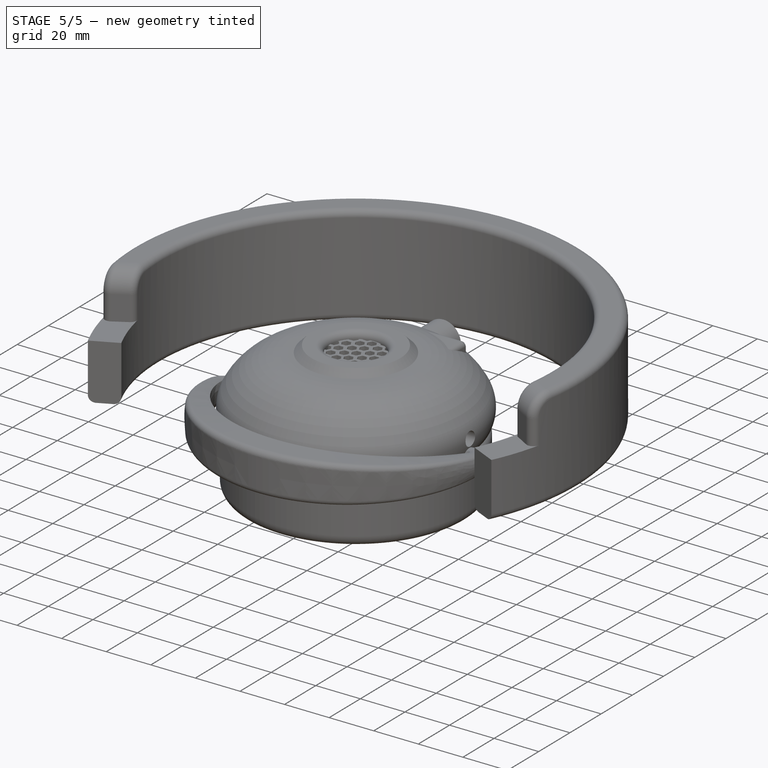
[diagram: stage 5 of 5 — iso view after this stage's code; geometry added in this stage tinted green]
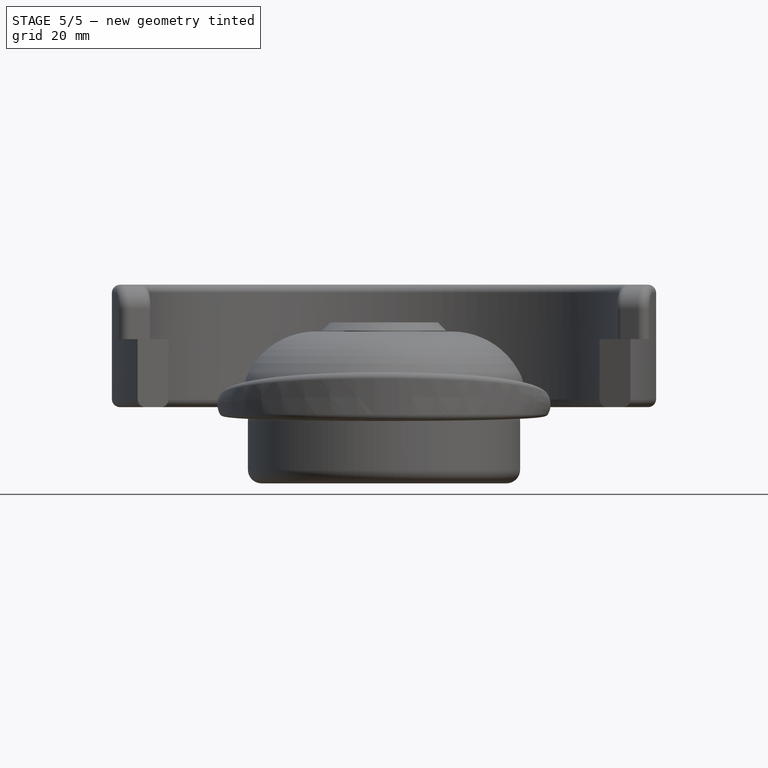
[diagram: stage 5 of 5 — front view after this stage's code; geometry added in this stage tinted green]
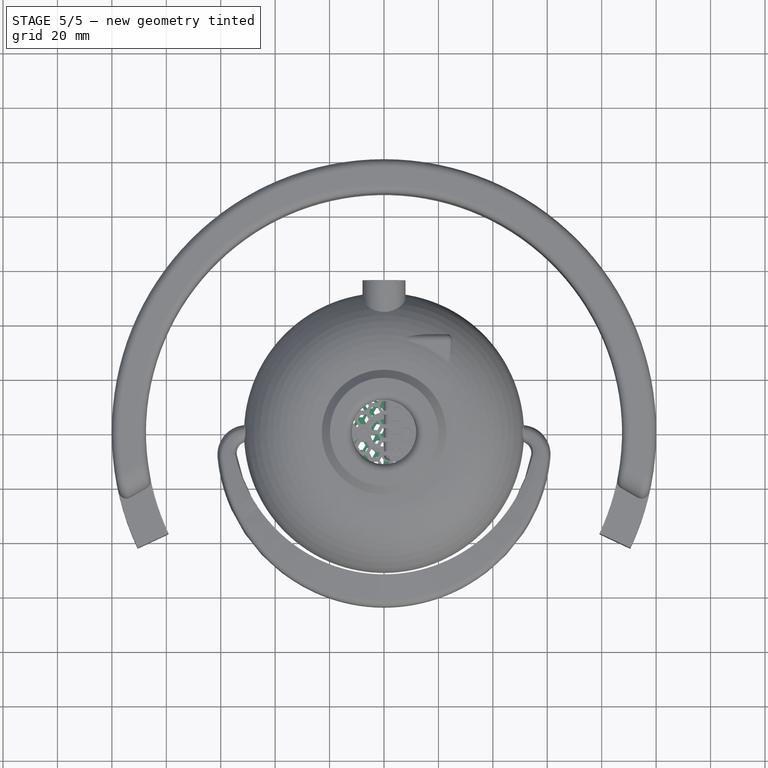
[diagram: stage 5 of 5 — top view after this stage's code; geometry added in this stage tinted green]
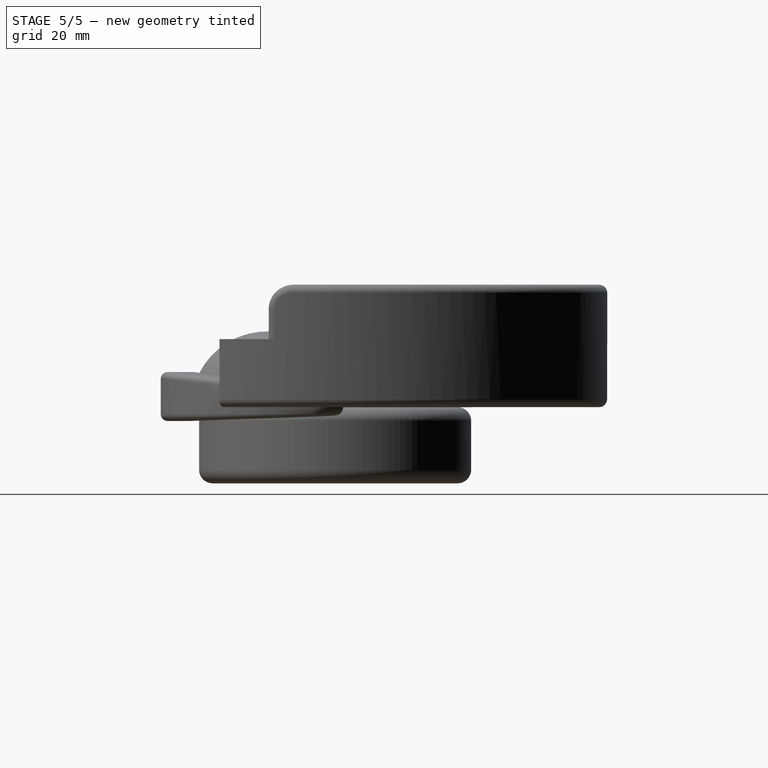
[diagram: stage 5 of 5 — right view after this stage's code; geometry added in this stage tinted green]
FEATURE [Sketcher::SketchObject] Sketch
  ArcFitTolerance = 0
  FullyConstrained = true
  MakeInternals = false
  MapMode = 5
  Placement = pos=(0,0,0) rot=(1,0,0;1.5708rad)
  sketch-geometry (25):
    g0: LineSegment [constr] StartX=-49.9725 StartY=-0.023406 StartZ=0 EndX=-49.9725 EndY=12.396 EndZ=0
    g1: LineSegment [constr] StartX=-49.9761 StartY=12.3995 StartZ=0 EndX=-37.5761 EndY=12.3995 EndZ=0
    g2: LineSegment [constr] StartX=-37.5761 StartY=12.3995 StartZ=0 EndX=-37.5761 EndY=24.7995 EndZ=0
    g3: LineSegment [constr] StartX=-49.9725 StartY=12.396 StartZ=0 EndX=-37.6202 EndY=24.7864 EndZ=0
    g4: LineSegment [constr] StartX=-37.5761 StartY=24.7995 StartZ=0 EndX=0 EndY=24.7995 EndZ=0
    g5: LineSegment [constr] StartX=-25 StartY=27.7995 StartZ=0 EndX=-25 EndY=0.000476786 EndZ=0
    g6: LineSegment [constr] StartX=-37.6202 StartY=24.7864 StartZ=0 EndX=-25 EndY=27.7995 EndZ=0
    g7: LineSegment StartX=-49.9725 StartY=-0.023406 StartZ=0 EndX=-47.9726 EndY=0 EndZ=0
    g8: LineSegment StartX=-47.9726 StartY=0 StartZ=0 EndX=-47.9726 EndY=3 EndZ=0
    g9: LineSegment StartX=-47.9726 StartY=3 StartZ=0 EndX=-44.9726 EndY=3 EndZ=0
    g10: LineSegment StartX=-44.9726 StartY=7.4115 StartZ=0 EndX=-44.9726 EndY=3 EndZ=0
    g11: LineSegment [constr] StartX=-49.9761 StartY=12.3995 StartZ=0 EndX=-44.9726 EndY=7.4115 EndZ=0
    g12: LineSegment StartX=-44.9726 StartY=7.4115 StartZ=0 EndX=-35.6559 EndY=16.757 EndZ=0
    g13: LineSegment [constr] StartX=-37.5761 StartY=24.7995 StartZ=0 EndX=-35.6559 EndY=16.757 EndZ=0
    g14: LineSegment StartX=-30.2 StartY=10.5995 StartZ=0 EndX=-25.2 EndY=10.5995 EndZ=0
    g15: LineSegment StartX=-35.6559 StartY=16.757 StartZ=0 EndX=-30.2 EndY=16.757 EndZ=0
    g16: LineSegment StartX=-30.2 StartY=16.757 StartZ=0 EndX=-30.2 EndY=10.5995 EndZ=0
    g17: LineSegment StartX=-25.2 StartY=10.5995 StartZ=0 EndX=-25.2 EndY=20.7995 EndZ=0
    g18: LineSegment StartX=-25.2 StartY=20.7995 StartZ=0 EndX=-13 EndY=20.7995 EndZ=0
    g19: LineSegment StartX=-15 StartY=27.7995 StartZ=0 EndX=-25 EndY=27.7995 EndZ=0
    g20: LineSegment StartX=-13 StartY=20.7995 StartZ=0 EndX=-13 EndY=24.7995 EndZ=0
    g21: LineSegment StartX=-13 StartY=24.7995 StartZ=0 EndX=-15 EndY=24.7995 EndZ=0
    g22: LineSegment StartX=-15 StartY=24.7995 StartZ=0 EndX=-15 EndY=27.7995 EndZ=0
    g23: ArcOfCircle CenterX=-25 CenterY=-0.145192 CenterZ=0 NormalX=0 NormalY=0 NormalZ=1 AngleXU=0 Radius=27.9447 StartAngle=1.5708 EndAngle=2.66959
    g24: ArcOfCircle CenterX=-37.5044 CenterY=6.18628 CenterZ=0 NormalX=0 NormalY=0 NormalZ=1 AngleXU=0 Radius=13.9289 StartAngle=2.66627 EndAngle=3.60368
  constraints (68):
    c: Vertical(g0)
    c: Distance(g1) = 12.4
    c: Horizontal(g1)
    c: Distance(g2) = 12.4
    c: Coincident(g2,g1)
    c: Vertical(g2)
    c: Coincident(g4,g2)
    c: PointOnObject(g4,g-2)
    c: Horizontal(g4)
    c: Vertical(g5)
    c: Distance(g-2,g5) = 25
    c: Distance(g7) = 2
    c: Coincident(g7,g0)
    c: PointOnObject(g7,g-1)
    c: Distance(g8) = 3
    c: Coincident(g8,g7)
    c: Vertical(g8)
    c: Distance(g9) = 3
    c: Coincident(g9,g8)
    c: Horizontal(g9)
    c: Vertical(g10)
    c: Coincident(g10,g9)
    c: Coincident(g11,g1)
    c: Angle(g11,g3) = 1.5708
    c: Coincident(g11,g10)
    c: Coincident(g12,g10)
    c: Parallel(g12,g3)
    c: Coincident(g13,g2)
    c: Perpendicular(g6,g13)
    c: Coincident(g12,g13)
    c: Coincident(g15,g12)
    c: Horizontal(g15)
    c: Distance(g15,g5) = 5.2
    c: Coincident(g16,g15)
    c: Vertical(g16)
    c: Coincident(g14,g16)
    c: Distance(g5,g14) = 17.2
    c: Coincident(g17,g14)
    c: Vertical(g17)
    c: Distance(g17,g4) = 4
    c: Perpendicular(g18,g17) = 1.5708
    c: Horizontal(g19)
    c: Distance(g5,g17) = 0.2
    c: Distance(g18,g18) = 12.2
    c: Coincident(g20,g18)
    c: PointOnObject(g20,g4)
    c: Vertical(g20)
    c: Coincident(g21,g20)
    c: PointOnObject(g21,g4)
    c: Coincident(g22,g21)
    c: Vertical(g22)
    c: Coincident(g22,g19)
    c: DistanceX(g21,g21) = 2
    c: Block(g12)
    c: DistanceY(g22,g22) = 3
    c: Coincident(g6,g5)
    c: PointOnObject(g19,g6)
    c: Distance(g12,g3) = 7.06
    c: Coincident(g6,g3)
    c: Coincident(g3,g0)
    c: Block(g5)
    c: Horizontal(g14)
    c: Tangent(g19,g23) = -1.5708
    c: Coincident(g23,g5)
    c: Coincident(g24,g7)
    c: Block(g23)
    c: Block(g24)
    c: Coincident(g24,g23)
FEATURE [Sketcher::SketchObject] Sketch004  label="support for screws"
  ArcFitTolerance = 0
  FullyConstrained = false
  MakeInternals = false
  Placement = pos=(0,7e-16,3) rot=(1,0,0;3.14159rad)
  sketch-geometry (23):
    g0: LineSegment [constr] StartX=0 StartY=0 StartZ=0 EndX=54.6998 EndY=54.6998 EndZ=0
    g1: Circle [constr] CenterX=27.3499 CenterY=27.3499 CenterZ=0 NormalX=0 NormalY=0 NormalZ=1 AngleXU=0 Radius=1.5
    g2: ArcOfCircle CenterX=27.3487 CenterY=27.3487 CenterZ=0 NormalX=0 NormalY=0 NormalZ=1 AngleXU=0 Radius=3 StartAngle=2.3562 EndAngle=5.49778
    g3: ArcOfCircle CenterX=9.71747e-06 CenterY=-1.77e-14 CenterZ=0 NormalX=0 NormalY=0 NormalZ=1 AngleXU=0 Radius=44.9996 StartAngle=0.718682 EndAngle=0.852115
    g4: LineSegment StartX=25.2274 StartY=29.47 StartZ=0 EndX=29.6274 EndY=33.87 EndZ=0
    g5: LineSegment StartX=33.87 StartY=29.6274 StartZ=0 EndX=29.47 EndY=25.2274 EndZ=0
    g6: LineSegment [constr] StartX=-58.6872 StartY=58.6872 StartZ=0 EndX=50.113 EndY=-50.113 EndZ=0
    g7: LineSegment [constr] StartX=9.71747e-06 StartY=-1.77e-14 StartZ=0 EndX=-62.5185 EndY=-62.5185 EndZ=0
    g8: Circle [constr] CenterX=-27.3499 CenterY=-27.3499 CenterZ=0 NormalX=0 NormalY=0 NormalZ=1 AngleXU=0 Radius=1.5
    g9: ArcOfCircle CenterX=-27.3487 CenterY=-27.3487 CenterZ=0 NormalX=0 NormalY=0 NormalZ=1 AngleXU=0 Radius=3 StartAngle=5.49779 EndAngle=8.63938
    g10: ArcOfCircle CenterX=9.71747e-06 CenterY=-1.07e-14 CenterZ=0 NormalX=0 NormalY=0 NormalZ=1 AngleXU=0 Radius=44.9996 StartAngle=3.86027 EndAngle=3.99371
    g11: LineSegment StartX=-29.47 StartY=-25.2274 StartZ=0 EndX=-33.87 EndY=-29.6274 EndZ=0
    g12: LineSegment StartX=-29.6274 StartY=-33.87 StartZ=0 EndX=-25.2274 EndY=-29.47 EndZ=0
    g13: Circle [constr] CenterX=-27.3499 CenterY=27.3499 CenterZ=0 NormalX=0 NormalY=0 NormalZ=1 AngleXU=0 Radius=1.5
    g14: ArcOfCircle CenterX=-27.3487 CenterY=27.3487 CenterZ=0 NormalX=0 NormalY=0 NormalZ=1 AngleXU=0 Radius=3 StartAngle=3.92699 EndAngle=7.06858
    g15: ArcOfCircle CenterX=9.71747e-06 CenterY=1.07e-14 CenterZ=0 NormalX=0 NormalY=0 NormalZ=1 AngleXU=0 Radius=44.9996 StartAngle=2.28948 EndAngle=2.42291
    g16: LineSegment StartX=-29.47 StartY=25.2274 StartZ=0 EndX=-33.87 EndY=29.6274 EndZ=0
    g17: LineSegment StartX=-29.6274 StartY=33.87 StartZ=0 EndX=-25.2274 EndY=29.47 EndZ=0
    g18: Circle [constr] CenterX=27.3499 CenterY=-27.3499 CenterZ=0 NormalX=0 NormalY=0 NormalZ=1 AngleXU=0 Radius=1.5
    g19: ArcOfCircle CenterX=27.3487 CenterY=-27.3487 CenterZ=0 NormalX=0 NormalY=0 NormalZ=1 AngleXU=0 Radius=3 StartAngle=0.785402 EndAngle=3.92699
    g20: ArcOfCircle CenterX=-9.71747e-06 CenterY=-1.07e-14 CenterZ=0 NormalX=0 NormalY=0 NormalZ=1 AngleXU=0 Radius=44.9996 StartAngle=5.43107 EndAngle=5.5645
    g21: LineSegment StartX=29.47 StartY=-25.2274 StartZ=0 EndX=33.87 EndY=-29.6274 EndZ=0
    g22: LineSegment StartX=29.6274 StartY=-33.87 StartZ=0 EndX=25.2274 EndY=-29.47 EndZ=0
  constraints (45):
    c: Coincident(g0,g-1)
    c: Diameter(g1) = 3
    c: Symmetric(g0,g0,g1)
    c: Coincident(g4,g2)
    c: Coincident(g4,g3)
    c: Coincident(g5,g3)
    c: Coincident(g5,g2)
    c: Equal(g5,g4)
    c: Parallel(g5,g0)
    c: Parallel(g4,g0)
    c: DistanceY(g5,g5) = 4.4
    c: Radius(g3) = 44.9996
    c: Block(g2)
    c: Block(g3)
    c: PointOnObject(g3,g6)
    c: Perpendicular(g0,g6)
    c: Coincident(g7,g3)
    c: Parallel(g7,g0)
    c: Diameter(g8) = 3
    c: Coincident(g11,g9)
    c: Coincident(g11,g10)
    c: Coincident(g12,g10)
    c: Coincident(g12,g9)
    c: Equal(g12,g11)
    c: Radius(g10) = 44.9996
    c: Block(g9)
    c: Block(g10)
    c: Diameter(g13) = 3
    c: Coincident(g16,g14)
    c: Coincident(g16,g15)
    c: Coincident(g17,g15)
    c: Coincident(g17,g14)
    c: Equal(g17,g16)
    c: Radius(g15) = 44.9996
    c: Block(g14)
    c: Block(g15)
    c: Diameter(g18) = 3
    c: Coincident(g21,g19)
    c: Coincident(g21,g20)
    c: Coincident(g22,g20)
    c: Coincident(g22,g19)
    c: Equal(g22,g21)
    c: Radius(g20) = 44.9996
    c: Block(g19)
    c: Block(g20)
FEATURE [Sketcher::SketchObject] Sketch005
  ArcFitTolerance = 0
  FullyConstrained = false
  MakeInternals = false
  MapMode = 5
  Placement = pos=(0,7e-16,3) rot=(1,0,0;3.14159rad)
  sketch-geometry (4):
    g0: Circle CenterX=-27.3487 CenterY=27.3487 CenterZ=0 NormalX=0 NormalY=0 NormalZ=1 AngleXU=0 Radius=1.85
    g1: Circle CenterX=27.3487 CenterY=27.3487 CenterZ=0 NormalX=0 NormalY=0 NormalZ=1 AngleXU=0 Radius=1.5
    g2: Circle CenterX=27.3487 CenterY=-27.3487 CenterZ=0 NormalX=0 NormalY=0 NormalZ=1 AngleXU=0 Radius=1.5
    g3: Circle CenterX=-27.3487 CenterY=-27.3487 CenterZ=0 NormalX=0 NormalY=0 NormalZ=1 AngleXU=0 Radius=1.5
  constraints (4):
    c: Diameter(g0) = 3.7
    c: Diameter(g1) = 3
    c: Diameter(g2) = 3
    c: Diameter(g3) = 3
FEATURE [Sketcher::SketchObject] Sketch008
  ArcFitTolerance = 0
  FullyConstrained = false
  MakeInternals = false
  MapMode = 5
  Placement = pos=(0,35.5,7.5) rot=(1,0,0;1.5708rad)
  sketch-geometry (3):
    g0: LineSegment [constr] StartX=-2.7e-15 StartY=9.4 StartZ=0 EndX=0 EndY=0 EndZ=0
    g1: LineSegment [constr] StartX=-8.38522 StartY=4.7 StartZ=0 EndX=-1.8e-15 EndY=4.7 EndZ=0
    g2: Circle CenterX=-1.8e-15 CenterY=4.7 CenterZ=0 NormalX=0 NormalY=0 NormalZ=1 AngleXU=0 Radius=5.85
  constraints (5):
    c: Coincident(g0,g-1)
    c: Symmetric(g0,g0,g1)
    c: PointOnObject(g1,g0)
    c: Diameter(g2) = 11.7
    c: Coincident(g2,g1)
FEATURE [Sketcher::SketchObject] Sketch009
  ArcFitTolerance = 0
  FullyConstrained = false
  MakeInternals = false
  MapMode = 5
  Placement = pos=(0,36,4.5) rot=(1,0,0;1.5708rad)
  sketch-geometry (4):
    g0: LineSegment [constr] StartX=0 StartY=13.6019 StartZ=0 EndX=0 EndY=1.80165 EndZ=0
    g1: LineSegment [constr] StartX=3.124 StartY=7.70178 StartZ=0 EndX=0 EndY=7.70178 EndZ=0
    g2: Circle [constr] CenterX=0 CenterY=7.70178 CenterZ=0 NormalX=0 NormalY=0 NormalZ=1 AngleXU=0 Radius=5.90013
    g3: Circle CenterX=0 CenterY=7.70178 CenterZ=0 NormalX=0 NormalY=0 NormalZ=1 AngleXU=0 Radius=7.90013
  constraints (8):
    c: PointOnObject(g0,g-2)
    c: Vertical(g0)
    c: Symmetric(g0,g0,g1)
    c: PointOnObject(g1,g0)
    c: Coincident(g2,g1)
    c: PointOnObject(g0,g2)
    c: Coincident(g3,g1)
    c: Distance(g3,g2) = 2
FEATURE [PartDesign::ShapeBinder] CopyFillet
  Placement = pos=(0,0,0) rot=(1,0,0;1.5708rad)
  TraceSupport = false
FEATURE [Sketcher::SketchObject] Sketch010
  ArcFitTolerance = 0
  AttachmentSupport = -> [CopyFillet]
  ExternalGeometry = -> [CopyFillet]
  FullyConstrained = true
  MakeInternals = false
  MapMode = 5
  Placement = pos=(0,1.3e-15,3) rot=(1,0,0;3.14159rad)
  sketch-geometry (1):
    g0: Circle CenterX=0 CenterY=0 CenterZ=0 NormalX=0 NormalY=0 NormalZ=1 AngleXU=0 Radius=47.75
  constraints (2):
    c: Coincident(g0,g-1)
    c: Diameter(g0) = 95.5
FEATURE [PartDesign::Pad] Pad002
  Direction = (0,0,-1)
  Length = 2
  Length2 = 10
  Placement = pos=(0,0,0) rot=(1,0,0;1.5708rad)
  Profile = -> Sketch010
  ReferenceAxis = -> Sketch010 [N_Axis]
  Refine = true
  Suppressed = false
  Type = 0
FEATURE [Sketcher::SketchObject] Sketch011
  ArcFitTolerance = 0
  AttachmentSupport = -> [XY_Plane001]
  FullyConstrained = false
  MakeInternals = false
  MapMode = 5
  sketch-geometry (17):
    g0: LineSegment StartX=-41.8028 StartY=-46.4395 StartZ=0 EndX=-42.8028 EndY=-44.7075 EndZ=0
    g1: LineSegment StartX=-42.8028 StartY=-44.7075 StartZ=0 EndX=-44.8028 EndY=-44.7075 EndZ=0
    g2: LineSegment StartX=-44.8028 StartY=-44.7075 StartZ=0 EndX=-45.8028 EndY=-46.4395 EndZ=0
    g3: LineSegment StartX=-45.8028 StartY=-46.4395 StartZ=0 EndX=-44.8028 EndY=-48.1716 EndZ=0
    g4: LineSegment StartX=-44.8028 StartY=-48.1716 StartZ=0 EndX=-42.8028 EndY=-48.1716 EndZ=0
    g5: LineSegment StartX=-42.8028 StartY=-48.1716 StartZ=0 EndX=-41.8028 EndY=-46.4395 EndZ=0
    g6: Circle [constr] CenterX=-43.8028 CenterY=-46.4395 CenterZ=0 NormalX=0 NormalY=0 NormalZ=1 AngleXU=0 Radius=2
    g7: LineSegment StartX=-38.2254 StartY=-49.1716 StartZ=0 EndX=-39.2254 EndY=-47.4395 EndZ=0
    g8: LineSegment StartX=-39.2254 StartY=-47.4395 StartZ=0 EndX=-41.2254 EndY=-47.4395 EndZ=0
    g9: LineSegment StartX=-41.2254 StartY=-47.4395 StartZ=0 EndX=-42.2254 EndY=-49.1716 EndZ=0
    g10: LineSegment StartX=-42.2254 StartY=-49.1716 StartZ=0 EndX=-41.2254 EndY=-50.9036 EndZ=0
    g11: LineSegment StartX=-41.2254 StartY=-50.9036 StartZ=0 EndX=-39.2254 EndY=-50.9036 EndZ=0
    g12: LineSegment StartX=-39.2254 StartY=-50.9036 StartZ=0 EndX=-38.2254 EndY=-49.1716 EndZ=0
    g13: Circle [constr] CenterX=-40.2254 CenterY=-49.1716 CenterZ=0 NormalX=0 NormalY=0 NormalZ=1 AngleXU=0 Radius=2
    g14: LineSegment [constr] StartX=-41.8028 StartY=-46.4395 StartZ=0 EndX=-41.2254 EndY=-47.4395 EndZ=0
    g15: LineSegment [constr] StartX=-41.2254 StartY=-47.4395 StartZ=0 EndX=-40.6481 EndY=-46.4395 EndZ=0
    g16: LineSegment [constr] StartX=-40.6481 StartY=-46.4395 StartZ=0 EndX=-41.8028 EndY=-46.4395 EndZ=0
  constraints (39):
    c: Coincident(g0,g1)
    c: Coincident(g1,g2)
    c: Coincident(g2,g3)
    c: Coincident(g3,g4)
    c: Coincident(g4,g5)
    c: Coincident(g5,g0)
    c: Equal(g0, g1-g5) x5
    c: PointOnObject(g0,g6)
    c: PointOnObject(g1,g6)
    c: PointOnObject(g2,g6)
    c: PointOnObject(g3,g6)
    c: PointOnObject(g4,g6)
    c: PointOnObject(g5,g6)
    c: Radius(g6) = 2
    c: Coincident(g7,g8)
    c: Coincident(g8,g9)
    c: Coincident(g9,g10)
    c: Coincident(g10,g11)
    c: Coincident(g11,g12)
    c: Coincident(g12,g7)
    c: Equal(g7, g8-g12) x5
    c: PointOnObject(g7,g13)
    c: PointOnObject(g8,g13)
    c: PointOnObject(g9,g13)
    c: PointOnObject(g10,g13)
    c: PointOnObject(g11,g13)
    c: PointOnObject(g12,g13)
    c: Radius(g13) = 2
    c: Coincident(g14,g0)
    c: Coincident(g14,g8)
    c: Coincident(g15,g8)
    c: Coincident(g16,g15)
    c: Coincident(g16,g0)
    c: Equal(g16,g15)
    c: Equal(g15,g14)
    c: Horizontal(g16)
    c: Horizontal(g8)
    c: Horizontal(g1)
    c: DistanceY(g15,g15) = 1
FEATURE [PartDesign::Pocket] Pocket002
  BaseFeature = -> Pad002
  Direction = (0,0,-1)
  Length = 5
  Length2 = 5
  Placement = pos=(0,0,0) rot=(1,0,0;1.5708rad)
  Profile = -> Sketch011
  ReferenceAxis = -> Sketch011 [N_Axis]
  Refine = true
  Reversed = true
  Suppressed = false
  Type = 0
FEATURE [PartDesign::LinearPattern] LinearPattern
  Direction = -> Sketch011 [H_Axis]
  Length = 119
  Mode = 1
  Occurrences = 18
  Offset = 7
  Placement = pos=(0,0,0) rot=(1,0,0;1.5708rad)
  Refine = true
  Suppressed = false
  TransformMode = 0
FEATURE [PartDesign::LinearPattern] LinearPattern001
  Direction = -> Sketch011 [V_Axis]
  Length = 96
  Mode = 1
  Occurrences = 17
  Offset = 6
  Placement = pos=(0,0,0) rot=(1,0,0;1.5708rad)
  Refine = true
  Suppressed = false
  TransformMode = 0
FEATURE [PartDesign::MultiTransform] MultiTransform
  BaseFeature = -> Pocket002
  Originals = -> [Pocket002]
  Placement = pos=(0,0,0) rot=(1,0,0;1.5708rad)
  Refine = true
  Suppressed = false
  TransformMode = 0
  Transformations = -> [LinearPattern,LinearPattern001]
FEATURE [Sketcher::SketchObject] Sketch012
  ArcFitTolerance = 0
  AttachmentSupport = -> [XY_Plane002]
  ExternalGeometry = -> [MultiTransform]
  FullyConstrained = false
  MakeInternals = false
  MapMode = 5
  sketch-geometry (10):
    g0: Circle CenterX=0 CenterY=0 CenterZ=0 NormalX=0 NormalY=0 NormalZ=1 AngleXU=0 Radius=47.75
    g1: LineSegment [constr] StartX=-57.5554 StartY=57.5554 StartZ=0 EndX=50.8385 EndY=-50.8385 EndZ=0
    g2: ArcOfCircle [constr] CenterX=0 CenterY=0 CenterZ=0 NormalX=0 NormalY=0 NormalZ=1 AngleXU=0 Radius=38.695 StartAngle=3.92699 EndAngle=5.49779
    g3: LineSegment [constr] StartX=-51.8471 StartY=-51.8471 StartZ=0 EndX=73.8919 EndY=73.8919 EndZ=0
    g4: ArcOfCircle [constr] CenterX=0 CenterY=0 CenterZ=0 NormalX=0 NormalY=0 NormalZ=1 AngleXU=0 Radius=38.695 StartAngle=0.785398 EndAngle=2.35619
    g5: Circle CenterX=-27.3615 CenterY=27.3615 CenterZ=0 NormalX=0 NormalY=0 NormalZ=1 AngleXU=0 Radius=1.5
    g6: Circle CenterX=27.3615 CenterY=27.3615 CenterZ=0 NormalX=0 NormalY=0 NormalZ=1 AngleXU=0 Radius=1.5
    g7: Circle CenterX=27.3615 CenterY=-27.3615 CenterZ=0 NormalX=0 NormalY=0 NormalZ=1 AngleXU=0 Radius=1.5
    g8: Circle CenterX=-27.3615 CenterY=-27.3615 CenterZ=0 NormalX=0 NormalY=0 NormalZ=1 AngleXU=0 Radius=1.5
    g9: Circle CenterX=0 CenterY=0 CenterZ=0 NormalX=0 NormalY=0 NormalZ=1 AngleXU=0 Radius=25
  constraints (24):
    c: Coincident(g0,g-1)
    c: PointOnObject(g0,g1)
    c: Angle(g1,g-1) = 0.785398
    c: Coincident(g2,g0)
    c: Diameter(g2) = 77.39
    c: Perpendicular(g1,g3)
    c: PointOnObject(g0,g3)
    c: PointOnObject(g4,g1)
    c: PointOnObject(g2,g3)
    c: Equal(g2,g4)
    c: PointOnObject(g2,g1)
    c: PointOnObject(g4,g3)
    c: Coincident(g2,g4)
    c: Diameter(g5) = 3
    c: Coincident(g5,g4)
    c: Diameter(g6) = 3
    c: Coincident(g6,g4)
    c: Diameter(g7) = 3
    c: Coincident(g7,g2)
    c: Diameter(g8) = 3
    c: Coincident(g8,g2)
    c: Diameter(g0) = 95.5
    c: Diameter(g9) = 50
    c: Coincident(g9,g0)
FEATURE [PartDesign::Pad] Pad003
  Direction = (0,0,1)
  Length = 3
  Length2 = 10
  Profile = -> Sketch012
  ReferenceAxis = -> Sketch012 [N_Axis]
  Refine = true
  Suppressed = false
  Type = 0
FEATURE [PartDesign::Body] Body002  label="rejilla2"
  AllowCompound = false
  Group = -> [Sketch012,Pad003]
  Origin = -> Origin002
  Tip = -> Pad003
FEATURE [Sketcher::SketchObject] Sketch013
  ArcFitTolerance = 0
  FullyConstrained = false
  MakeInternals = false
  Placement = pos=(0,0,3) rot=(0,0,1;0rad)
  sketch-geometry (4):
    g0: Circle CenterX=27.3615 CenterY=27.3615 CenterZ=0 NormalX=0 NormalY=0 NormalZ=1 AngleXU=0 Radius=1.59855
    g1: Circle CenterX=27.3615 CenterY=-27.3615 CenterZ=0 NormalX=0 NormalY=0 NormalZ=1 AngleXU=0 Radius=1.59855
    g2: Circle CenterX=-27.3615 CenterY=27.3615 CenterZ=0 NormalX=0 NormalY=0 NormalZ=1 AngleXU=0 Radius=1.59855
    g3: Circle CenterX=-27.3615 CenterY=-27.3615 CenterZ=0 NormalX=0 NormalY=0 NormalZ=1 AngleXU=0 Radius=1.59855
FEATURE [PartDesign::Boolean] Boolean
  BaseFeature = -> MultiTransform
  Group = -> [Body002]
  Refine = true
  Suppressed = false
  Type = 0
  UsePlacement = true
FEATURE [PartDesign::Pocket] Pocket003
  BaseFeature = -> Boolean
  Direction = (0,0,-1)
  Length = 5
  Length2 = 5
  Profile = -> Sketch013
  ReferenceAxis = -> Sketch013 [N_Axis]
  Refine = true
  Suppressed = false
  Type = 0
FEATURE [PartDesign::Pocket] Pocket010
  BaseFeature = -> Pocket006
  Direction = (0,0,-1)
  Length = 5
  Length2 = 5
  Placement = pos=(0,0,10.6) rot=(1,0,0;1.5708rad)
  Profile = -> Sketch018
  ReferenceAxis = -> Sketch018 [N_Axis]
  Refine = true
  Suppressed = false
  Type = 1
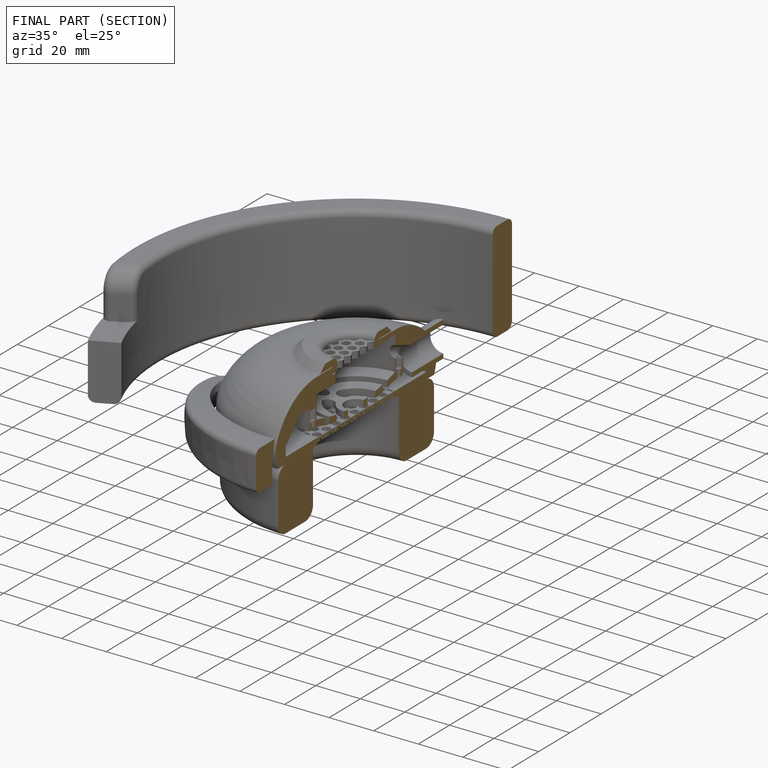
[diagram: finished part — half-section view (interior)]
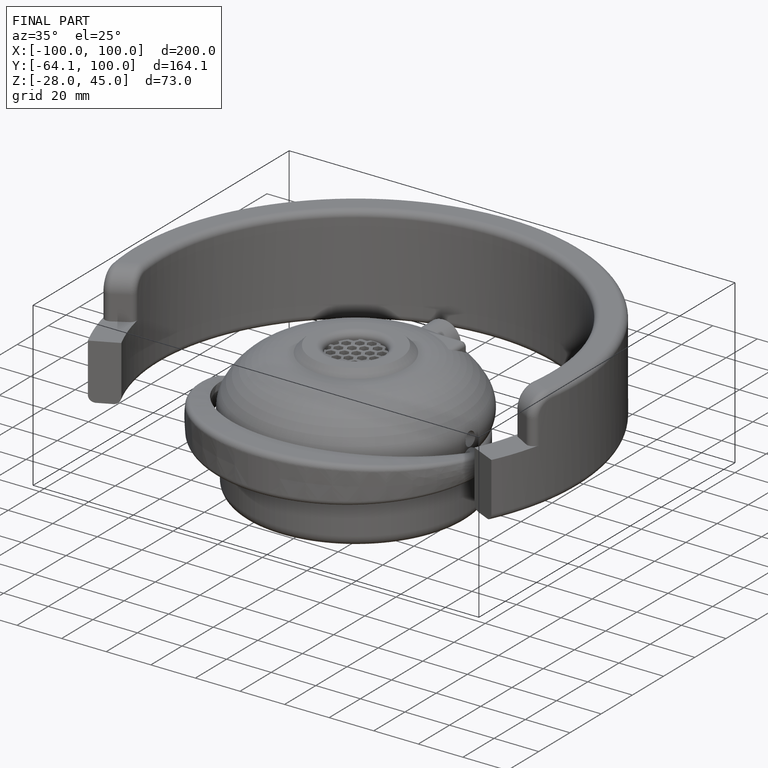
[diagram: finished part — iso view with bounding-box wireframe]
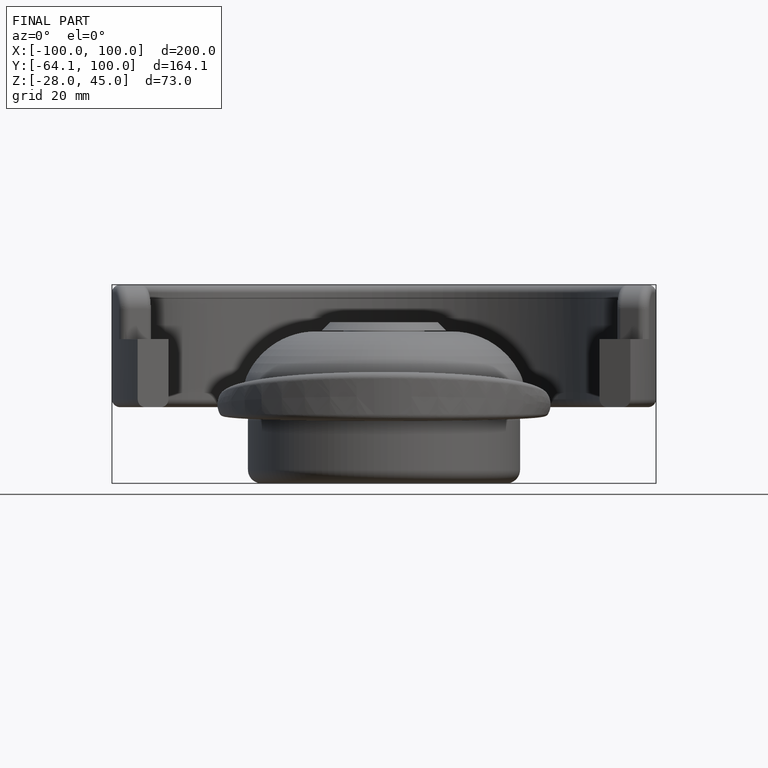
[diagram: finished part — front view with bounding-box wireframe]
